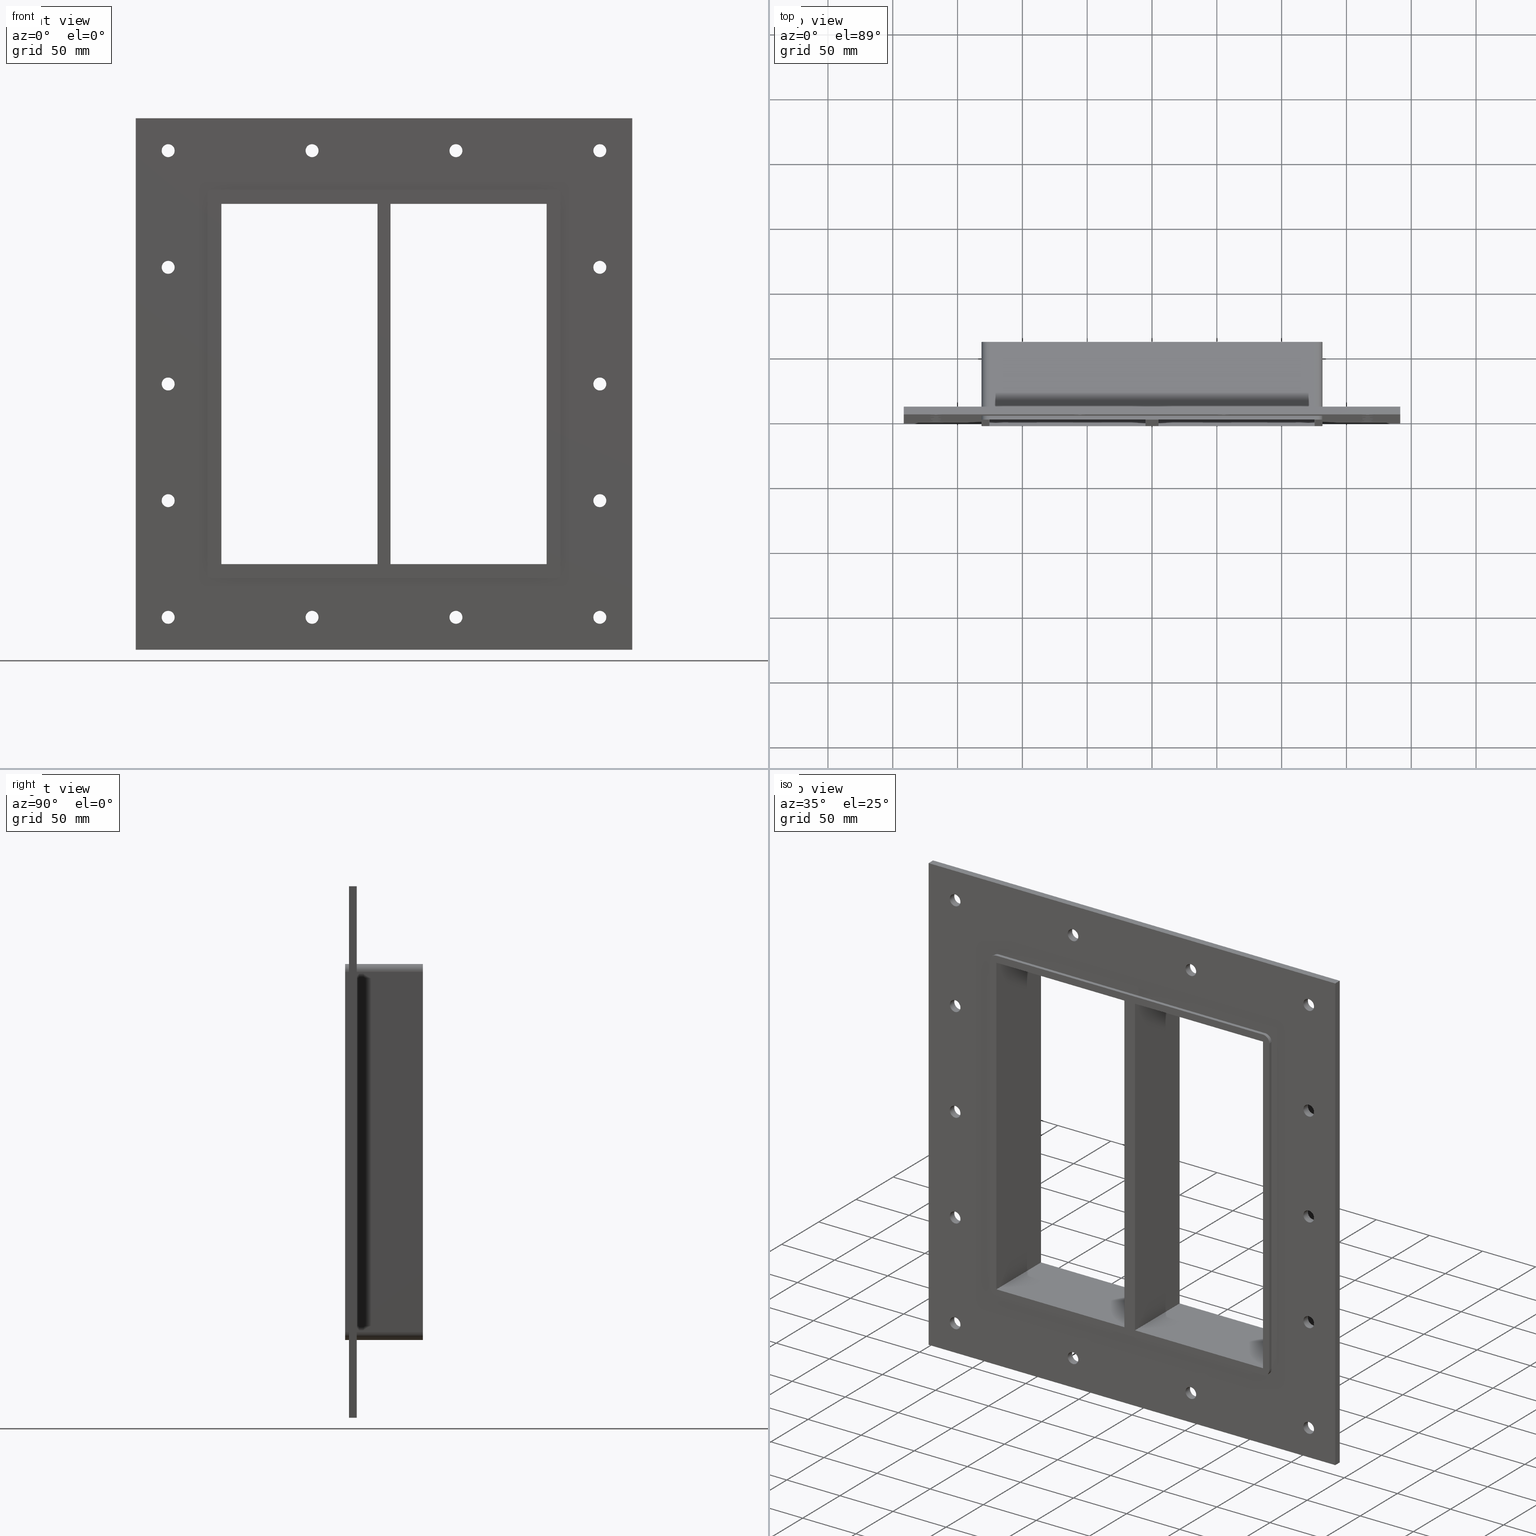
[diagram: canonical four-view strip — front | top / right | iso, engineering-drawing reading convention]
A machine part, canonical four-view strip (front | top / right | iso — engineering-drawing reading convention). The complete STEP part file that produces these views, byte-faithful:
ISO-10303-21;
HEADER;
/****************************************************************
 * Generated by software with PDElib inside                    *
 * PDElib Version v51a, created Wed 11/30/2011                  *
 * ITI Transcendata (http://www.transcendata.com/)              *
 ****************************************************************/
FILE_DESCRIPTION((''),'2;1');
FILE_NAME('N:\\Projects\\Ongoing_Projects\\12403 Transit Designer\\Product-data\\Product Data\\Transit designer Cad Generator\\CreatedFiles\\STEP\\G B EX8X2.stp','2014-12-01T13:17:59',(''),(''),'Autodesk Inventor 2013','Autodesk Inventor 2013','');
FILE_SCHEMA(('AUTOMOTIVE_DESIGN { 1 0 10303 214 1 1 1 1 }'));
ENDSEC;
DATA;
#5=APPLICATION_CONTEXT('automotive design');
#6=APPLICATION_PROTOCOL_DEFINITION('International Standard','automotive_design',2001,#5);
#7=PRODUCT_CONTEXT('',#5,'mechanical');
#8=PRODUCT('G B Ex','G B Ex',$,(#7));
#9=PRODUCT_RELATED_PRODUCT_CATEGORY('part',$,(#8));
#10=PRODUCT_DEFINITION_FORMATION('',$,#8);
#11=PRODUCT_DEFINITION_CONTEXT('part definition',#5,'design');
#12=PRODUCT_DEFINITION('',$,#10,#11);
#18=(NAMED_UNIT(*)PLANE_ANGLE_UNIT()SI_UNIT($,.RADIAN.));
#19=DIMENSIONAL_EXPONENTS(0.0,0.0,0.0,0.0,0.0,0.0,0.0);
#20=PLANE_ANGLE_MEASURE_WITH_UNIT(PLANE_ANGLE_MEASURE(0.0174532925),#18);
#24=(CONVERSION_BASED_UNIT('DEGREE',#20)NAMED_UNIT(#19)PLANE_ANGLE_UNIT());
#28=(NAMED_UNIT(*)SI_UNIT($,.STERADIAN.)SOLID_ANGLE_UNIT());
#32=(LENGTH_UNIT()NAMED_UNIT(*)SI_UNIT(.MILLI.,.METRE.));
#34=UNCERTAINTY_MEASURE_WITH_UNIT(LENGTH_MEASURE(0.01),#32,'DISTANCE_ACCURACY_VALUE','');
#36=(GEOMETRIC_REPRESENTATION_CONTEXT(3)GLOBAL_UNCERTAINTY_ASSIGNED_CONTEXT((#34))GLOBAL_UNIT_ASSIGNED_CONTEXT((#24,#28,#32))REPRESENTATION_CONTEXT('None','None'));
#37=AXIS2_PLACEMENT_3D('',#38,#39,#40);
#38=CARTESIAN_POINT('',(0.0,0.0,0.0));
#39=DIRECTION('',(0.0,0.0,1.0));
#40=DIRECTION('',(1.0,0.0,0.0));
#41=SHAPE_REPRESENTATION('',(#37),#36);
#42=PRODUCT_DEFINITION_SHAPE('','',#12);
#43=SHAPE_DEFINITION_REPRESENTATION(#42,#41);
#49=(NAMED_UNIT(*)PLANE_ANGLE_UNIT()SI_UNIT($,.RADIAN.));
#50=DIMENSIONAL_EXPONENTS(0.0,0.0,0.0,0.0,0.0,0.0,0.0);
#51=PLANE_ANGLE_MEASURE_WITH_UNIT(PLANE_ANGLE_MEASURE(0.0174532925),#49);
#55=(CONVERSION_BASED_UNIT('DEGREE',#51)NAMED_UNIT(#50)PLANE_ANGLE_UNIT());
#59=(NAMED_UNIT(*)SI_UNIT($,.STERADIAN.)SOLID_ANGLE_UNIT());
#63=(LENGTH_UNIT()NAMED_UNIT(*)SI_UNIT(.MILLI.,.METRE.));
#65=UNCERTAINTY_MEASURE_WITH_UNIT(LENGTH_MEASURE(0.000001),#63,'DISTANCE_ACCURACY_VALUE','');
#67=(GEOMETRIC_REPRESENTATION_CONTEXT(3)GLOBAL_UNCERTAINTY_ASSIGNED_CONTEXT((#65))GLOBAL_UNIT_ASSIGNED_CONTEXT((#55,#59,#63))REPRESENTATION_CONTEXT('','3D'));
#68=CARTESIAN_POINT('',(-166.50000000000017,564.25969198587984,-179.99999999999997));
#69=DIRECTION('',(0.0,-1.0,0.0));
#70=DIRECTION('',(1.0,0.0,0.0));
#71=AXIS2_PLACEMENT_3D('',#68,#69,#70);
#72=CYLINDRICAL_SURFACE('',#71,5.0);
#73=CARTESIAN_POINT('',(-171.50000000000017,6.000000000000014,-179.99999999999997));
#74=VERTEX_POINT('',#73);
#75=CARTESIAN_POINT('',(-166.50000000000017,6.000000000000014,-179.99999999999997));
#76=DIRECTION('',(0.0,-1.0,0.0));
#77=DIRECTION('',(1.0,0.0,0.0));
#78=AXIS2_PLACEMENT_3D('',#75,#76,#77);
#79=CIRCLE('',#78,5.0);
#80=EDGE_CURVE('',#74,#74,#79,.T.);
#81=ORIENTED_EDGE('',*,*,#80,.F.);
#82=EDGE_LOOP('',(#81));
#83=FACE_OUTER_BOUND('',#82,.T.);
#84=CARTESIAN_POINT('',(-161.50000000000017,0.0,-179.99999999999997));
#85=VERTEX_POINT('',#84);
#86=CARTESIAN_POINT('',(-166.50000000000017,0.0,-179.99999999999997));
#87=DIRECTION('',(0.0,1.0,0.0));
#88=DIRECTION('',(1.0,0.0,0.0));
#89=AXIS2_PLACEMENT_3D('',#86,#87,#88);
#90=CIRCLE('',#89,5.0);
#91=EDGE_CURVE('',#85,#85,#90,.T.);
#92=ORIENTED_EDGE('',*,*,#91,.F.);
#93=EDGE_LOOP('',(#92));
#94=FACE_BOUND('',#93,.T.);
#95=ADVANCED_FACE('',(#83,#94),#72,.F.);
#96=CARTESIAN_POINT('',(166.49999999999989,564.25969198587984,-89.999999999999972));
#97=DIRECTION('',(0.0,-1.0,0.0));
#98=DIRECTION('',(1.0,0.0,0.0));
#99=AXIS2_PLACEMENT_3D('',#96,#97,#98);
#100=CYLINDRICAL_SURFACE('',#99,5.0);
#101=CARTESIAN_POINT('',(161.49999999999989,6.000000000000014,-89.999999999999972));
#102=VERTEX_POINT('',#101);
#103=CARTESIAN_POINT('',(166.49999999999989,6.000000000000014,-89.999999999999972));
#104=DIRECTION('',(0.0,-1.0,0.0));
#105=DIRECTION('',(1.0,0.0,0.0));
#106=AXIS2_PLACEMENT_3D('',#103,#104,#105);
#107=CIRCLE('',#106,5.0);
#108=EDGE_CURVE('',#102,#102,#107,.T.);
#109=ORIENTED_EDGE('',*,*,#108,.F.);
#110=EDGE_LOOP('',(#109));
#111=FACE_OUTER_BOUND('',#110,.T.);
#112=CARTESIAN_POINT('',(171.49999999999989,0.0,-89.999999999999972));
#113=VERTEX_POINT('',#112);
#114=CARTESIAN_POINT('',(166.49999999999989,0.0,-89.999999999999972));
#115=DIRECTION('',(0.0,1.0,0.0));
#116=DIRECTION('',(1.0,0.0,0.0));
#117=AXIS2_PLACEMENT_3D('',#114,#115,#116);
#118=CIRCLE('',#117,5.0);
#119=EDGE_CURVE('',#113,#113,#118,.T.);
#120=ORIENTED_EDGE('',*,*,#119,.F.);
#121=EDGE_LOOP('',(#120));
#122=FACE_BOUND('',#121,.T.);
#123=ADVANCED_FACE('',(#111,#122),#100,.F.);
#124=CARTESIAN_POINT('',(-166.50000000000017,564.25969198587984,-89.999999999999972));
#125=DIRECTION('',(0.0,-1.0,0.0));
#126=DIRECTION('',(1.0,0.0,0.0));
#127=AXIS2_PLACEMENT_3D('',#124,#125,#126);
#128=CYLINDRICAL_SURFACE('',#127,5.0);
#129=CARTESIAN_POINT('',(-171.50000000000017,6.000000000000014,-89.999999999999972));
#130=VERTEX_POINT('',#129);
#131=CARTESIAN_POINT('',(-166.50000000000017,6.000000000000014,-89.999999999999972));
#132=DIRECTION('',(0.0,-1.0,0.0));
#133=DIRECTION('',(1.0,0.0,0.0));
#134=AXIS2_PLACEMENT_3D('',#131,#132,#133);
#135=CIRCLE('',#134,5.0);
#136=EDGE_CURVE('',#130,#130,#135,.T.);
#137=ORIENTED_EDGE('',*,*,#136,.F.);
#138=EDGE_LOOP('',(#137));
#139=FACE_OUTER_BOUND('',#138,.T.);
#140=CARTESIAN_POINT('',(-161.50000000000017,0.0,-89.999999999999972));
#141=VERTEX_POINT('',#140);
#142=CARTESIAN_POINT('',(-166.50000000000017,0.0,-89.999999999999972));
#143=DIRECTION('',(0.0,1.0,0.0));
#144=DIRECTION('',(1.0,0.0,0.0));
#145=AXIS2_PLACEMENT_3D('',#142,#143,#144);
#146=CIRCLE('',#145,5.0);
#147=EDGE_CURVE('',#141,#141,#146,.T.);
#148=ORIENTED_EDGE('',*,*,#147,.F.);
#149=EDGE_LOOP('',(#148));
#150=FACE_BOUND('',#149,.T.);
#151=ADVANCED_FACE('',(#139,#150),#128,.F.);
#152=CARTESIAN_POINT('',(166.49999999999989,564.25969198587984,3.552714E-014));
#153=DIRECTION('',(0.0,-1.0,0.0));
#154=DIRECTION('',(1.0,0.0,0.0));
#155=AXIS2_PLACEMENT_3D('',#152,#153,#154);
#156=CYLINDRICAL_SURFACE('',#155,5.0);
#157=CARTESIAN_POINT('',(161.49999999999989,6.000000000000014,3.552714E-014));
#158=VERTEX_POINT('',#157);
#159=CARTESIAN_POINT('',(166.49999999999989,6.000000000000014,3.552714E-014));
#160=DIRECTION('',(0.0,-1.0,0.0));
#161=DIRECTION('',(1.0,0.0,0.0));
#162=AXIS2_PLACEMENT_3D('',#159,#160,#161);
#163=CIRCLE('',#162,5.0);
#164=EDGE_CURVE('',#158,#158,#163,.T.);
#165=ORIENTED_EDGE('',*,*,#164,.F.);
#166=EDGE_LOOP('',(#165));
#167=FACE_OUTER_BOUND('',#166,.T.);
#168=CARTESIAN_POINT('',(171.49999999999989,0.0,3.552714E-014));
#169=VERTEX_POINT('',#168);
#170=CARTESIAN_POINT('',(166.49999999999989,0.0,3.552714E-014));
#171=DIRECTION('',(0.0,1.0,0.0));
#172=DIRECTION('',(1.0,0.0,0.0));
#173=AXIS2_PLACEMENT_3D('',#170,#171,#172);
#174=CIRCLE('',#173,5.0);
#175=EDGE_CURVE('',#169,#169,#174,.T.);
#176=ORIENTED_EDGE('',*,*,#175,.F.);
#177=EDGE_LOOP('',(#176));
#178=FACE_BOUND('',#177,.T.);
#179=ADVANCED_FACE('',(#167,#178),#156,.F.);
#180=CARTESIAN_POINT('',(-166.50000000000017,564.25969198587984,3.552714E-014));
#181=DIRECTION('',(0.0,-1.0,0.0));
#182=DIRECTION('',(1.0,0.0,0.0));
#183=AXIS2_PLACEMENT_3D('',#180,#181,#182);
#184=CYLINDRICAL_SURFACE('',#183,5.0);
#185=CARTESIAN_POINT('',(-171.50000000000017,6.000000000000014,3.552714E-014));
#186=VERTEX_POINT('',#185);
#187=CARTESIAN_POINT('',(-166.50000000000017,6.000000000000014,3.552714E-014));
#188=DIRECTION('',(0.0,-1.0,0.0));
#189=DIRECTION('',(1.0,0.0,0.0));
#190=AXIS2_PLACEMENT_3D('',#187,#188,#189);
#191=CIRCLE('',#190,5.0);
#192=EDGE_CURVE('',#186,#186,#191,.T.);
#193=ORIENTED_EDGE('',*,*,#192,.F.);
#194=EDGE_LOOP('',(#193));
#195=FACE_OUTER_BOUND('',#194,.T.);
#196=CARTESIAN_POINT('',(-161.50000000000017,0.0,3.552714E-014));
#197=VERTEX_POINT('',#196);
#198=CARTESIAN_POINT('',(-166.50000000000017,0.0,3.552714E-014));
#199=DIRECTION('',(0.0,1.0,0.0));
#200=DIRECTION('',(1.0,0.0,0.0));
#201=AXIS2_PLACEMENT_3D('',#198,#199,#200);
#202=CIRCLE('',#201,5.0);
#203=EDGE_CURVE('',#197,#197,#202,.T.);
#204=ORIENTED_EDGE('',*,*,#203,.F.);
#205=EDGE_LOOP('',(#204));
#206=FACE_BOUND('',#205,.T.);
#207=ADVANCED_FACE('',(#195,#206),#184,.F.);
#208=CARTESIAN_POINT('',(166.49999999999989,564.25969198587984,90.000000000000028));
#209=DIRECTION('',(0.0,-1.0,0.0));
#210=DIRECTION('',(1.0,0.0,0.0));
#211=AXIS2_PLACEMENT_3D('',#208,#209,#210);
#212=CYLINDRICAL_SURFACE('',#211,5.0);
#213=CARTESIAN_POINT('',(161.49999999999989,6.000000000000014,90.000000000000028));
#214=VERTEX_POINT('',#213);
#215=CARTESIAN_POINT('',(166.49999999999989,6.000000000000014,90.000000000000028));
#216=DIRECTION('',(0.0,-1.0,0.0));
#217=DIRECTION('',(1.0,0.0,0.0));
#218=AXIS2_PLACEMENT_3D('',#215,#216,#217);
#219=CIRCLE('',#218,5.0);
#220=EDGE_CURVE('',#214,#214,#219,.T.);
#221=ORIENTED_EDGE('',*,*,#220,.F.);
#222=EDGE_LOOP('',(#221));
#223=FACE_OUTER_BOUND('',#222,.T.);
#224=CARTESIAN_POINT('',(171.49999999999989,0.0,90.000000000000028));
#225=VERTEX_POINT('',#224);
#226=CARTESIAN_POINT('',(166.49999999999989,0.0,90.000000000000028));
#227=DIRECTION('',(0.0,1.0,0.0));
#228=DIRECTION('',(1.0,0.0,0.0));
#229=AXIS2_PLACEMENT_3D('',#226,#227,#228);
#230=CIRCLE('',#229,5.0);
#231=EDGE_CURVE('',#225,#225,#230,.T.);
#232=ORIENTED_EDGE('',*,*,#231,.F.);
#233=EDGE_LOOP('',(#232));
#234=FACE_BOUND('',#233,.T.);
#235=ADVANCED_FACE('',(#223,#234),#212,.F.);
#236=CARTESIAN_POINT('',(-166.50000000000017,564.25969198587984,90.000000000000028));
#237=DIRECTION('',(0.0,-1.0,0.0));
#238=DIRECTION('',(1.0,0.0,0.0));
#239=AXIS2_PLACEMENT_3D('',#236,#237,#238);
#240=CYLINDRICAL_SURFACE('',#239,5.0);
#241=CARTESIAN_POINT('',(-171.50000000000017,6.000000000000014,90.000000000000028));
#242=VERTEX_POINT('',#241);
#243=CARTESIAN_POINT('',(-166.50000000000017,6.000000000000014,90.000000000000028));
#244=DIRECTION('',(0.0,-1.0,0.0));
#245=DIRECTION('',(1.0,0.0,0.0));
#246=AXIS2_PLACEMENT_3D('',#243,#244,#245);
#247=CIRCLE('',#246,5.0);
#248=EDGE_CURVE('',#242,#242,#247,.T.);
#249=ORIENTED_EDGE('',*,*,#248,.F.);
#250=EDGE_LOOP('',(#249));
#251=FACE_OUTER_BOUND('',#250,.T.);
#252=CARTESIAN_POINT('',(-161.50000000000017,0.0,90.000000000000028));
#253=VERTEX_POINT('',#252);
#254=CARTESIAN_POINT('',(-166.50000000000017,0.0,90.000000000000028));
#255=DIRECTION('',(0.0,1.0,0.0));
#256=DIRECTION('',(1.0,0.0,0.0));
#257=AXIS2_PLACEMENT_3D('',#254,#255,#256);
#258=CIRCLE('',#257,5.0);
#259=EDGE_CURVE('',#253,#253,#258,.T.);
#260=ORIENTED_EDGE('',*,*,#259,.F.);
#261=EDGE_LOOP('',(#260));
#262=FACE_BOUND('',#261,.T.);
#263=ADVANCED_FACE('',(#251,#262),#240,.F.);
#264=CARTESIAN_POINT('',(-55.500000000000149,564.25969198587984,180.00000000000003));
#265=DIRECTION('',(0.0,-1.0,0.0));
#266=DIRECTION('',(1.0,0.0,0.0));
#267=AXIS2_PLACEMENT_3D('',#264,#265,#266);
#268=CYLINDRICAL_SURFACE('',#267,5.0);
#269=CARTESIAN_POINT('',(-60.500000000000149,6.000000000000014,180.00000000000003));
#270=VERTEX_POINT('',#269);
#271=CARTESIAN_POINT('',(-55.500000000000149,6.000000000000014,180.00000000000003));
#272=DIRECTION('',(0.0,-1.0,0.0));
#273=DIRECTION('',(1.0,0.0,0.0));
#274=AXIS2_PLACEMENT_3D('',#271,#272,#273);
#275=CIRCLE('',#274,5.0);
#276=EDGE_CURVE('',#270,#270,#275,.T.);
#277=ORIENTED_EDGE('',*,*,#276,.F.);
#278=EDGE_LOOP('',(#277));
#279=FACE_OUTER_BOUND('',#278,.T.);
#280=CARTESIAN_POINT('',(-50.500000000000149,0.0,180.00000000000003));
#281=VERTEX_POINT('',#280);
#282=CARTESIAN_POINT('',(-55.500000000000149,0.0,180.00000000000003));
#283=DIRECTION('',(0.0,1.0,0.0));
#284=DIRECTION('',(1.0,0.0,0.0));
#285=AXIS2_PLACEMENT_3D('',#282,#283,#284);
#286=CIRCLE('',#285,5.0);
#287=EDGE_CURVE('',#281,#281,#286,.T.);
#288=ORIENTED_EDGE('',*,*,#287,.F.);
#289=EDGE_LOOP('',(#288));
#290=FACE_BOUND('',#289,.T.);
#291=ADVANCED_FACE('',(#279,#290),#268,.F.);
#292=CARTESIAN_POINT('',(-55.500000000000149,564.25969198587984,-179.99999999999997));
#293=DIRECTION('',(0.0,-1.0,0.0));
#294=DIRECTION('',(1.0,0.0,0.0));
#295=AXIS2_PLACEMENT_3D('',#292,#293,#294);
#296=CYLINDRICAL_SURFACE('',#295,5.0);
#297=CARTESIAN_POINT('',(-60.500000000000149,6.000000000000014,-179.99999999999997));
#298=VERTEX_POINT('',#297);
#299=CARTESIAN_POINT('',(-55.500000000000149,6.000000000000014,-179.99999999999997));
#300=DIRECTION('',(0.0,-1.0,0.0));
#301=DIRECTION('',(1.0,0.0,0.0));
#302=AXIS2_PLACEMENT_3D('',#299,#300,#301);
#303=CIRCLE('',#302,5.0);
#304=EDGE_CURVE('',#298,#298,#303,.T.);
#305=ORIENTED_EDGE('',*,*,#304,.F.);
#306=EDGE_LOOP('',(#305));
#307=FACE_OUTER_BOUND('',#306,.T.);
#308=CARTESIAN_POINT('',(-50.500000000000149,0.0,-179.99999999999997));
#309=VERTEX_POINT('',#308);
#310=CARTESIAN_POINT('',(-55.500000000000149,0.0,-179.99999999999997));
#311=DIRECTION('',(0.0,1.0,0.0));
#312=DIRECTION('',(1.0,0.0,0.0));
#313=AXIS2_PLACEMENT_3D('',#310,#311,#312);
#314=CIRCLE('',#313,5.0);
#315=EDGE_CURVE('',#309,#309,#314,.T.);
#316=ORIENTED_EDGE('',*,*,#315,.F.);
#317=EDGE_LOOP('',(#316));
#318=FACE_BOUND('',#317,.T.);
#319=ADVANCED_FACE('',(#307,#318),#296,.F.);
#320=CARTESIAN_POINT('',(55.499999999999865,564.25969198587984,180.00000000000003));
#321=DIRECTION('',(0.0,-1.0,0.0));
#322=DIRECTION('',(1.0,0.0,0.0));
#323=AXIS2_PLACEMENT_3D('',#320,#321,#322);
#324=CYLINDRICAL_SURFACE('',#323,5.0);
#325=CARTESIAN_POINT('',(50.499999999999865,6.000000000000014,180.00000000000003));
#326=VERTEX_POINT('',#325);
#327=CARTESIAN_POINT('',(55.499999999999865,6.000000000000014,180.00000000000003));
#328=DIRECTION('',(0.0,-1.0,0.0));
#329=DIRECTION('',(1.0,0.0,0.0));
#330=AXIS2_PLACEMENT_3D('',#327,#328,#329);
#331=CIRCLE('',#330,5.0);
#332=EDGE_CURVE('',#326,#326,#331,.T.);
#333=ORIENTED_EDGE('',*,*,#332,.F.);
#334=EDGE_LOOP('',(#333));
#335=FACE_OUTER_BOUND('',#334,.T.);
#336=CARTESIAN_POINT('',(60.499999999999865,0.0,180.00000000000003));
#337=VERTEX_POINT('',#336);
#338=CARTESIAN_POINT('',(55.499999999999865,0.0,180.00000000000003));
#339=DIRECTION('',(0.0,1.0,0.0));
#340=DIRECTION('',(1.0,0.0,0.0));
#341=AXIS2_PLACEMENT_3D('',#338,#339,#340);
#342=CIRCLE('',#341,5.0);
#343=EDGE_CURVE('',#337,#337,#342,.T.);
#344=ORIENTED_EDGE('',*,*,#343,.F.);
#345=EDGE_LOOP('',(#344));
#346=FACE_BOUND('',#345,.T.);
#347=ADVANCED_FACE('',(#335,#346),#324,.F.);
#348=CARTESIAN_POINT('',(55.499999999999865,564.25969198587984,-179.99999999999997));
#349=DIRECTION('',(0.0,-1.0,0.0));
#350=DIRECTION('',(1.0,0.0,0.0));
#351=AXIS2_PLACEMENT_3D('',#348,#349,#350);
#352=CYLINDRICAL_SURFACE('',#351,5.0);
#353=CARTESIAN_POINT('',(50.499999999999865,6.000000000000014,-179.99999999999997));
#354=VERTEX_POINT('',#353);
#355=CARTESIAN_POINT('',(55.499999999999865,6.000000000000014,-179.99999999999997));
#356=DIRECTION('',(0.0,-1.0,0.0));
#357=DIRECTION('',(1.0,0.0,0.0));
#358=AXIS2_PLACEMENT_3D('',#355,#356,#357);
#359=CIRCLE('',#358,5.0);
#360=EDGE_CURVE('',#354,#354,#359,.T.);
#361=ORIENTED_EDGE('',*,*,#360,.F.);
#362=EDGE_LOOP('',(#361));
#363=FACE_OUTER_BOUND('',#362,.T.);
#364=CARTESIAN_POINT('',(60.499999999999865,0.0,-179.99999999999997));
#365=VERTEX_POINT('',#364);
#366=CARTESIAN_POINT('',(55.499999999999865,0.0,-179.99999999999997));
#367=DIRECTION('',(0.0,1.0,0.0));
#368=DIRECTION('',(1.0,0.0,0.0));
#369=AXIS2_PLACEMENT_3D('',#366,#367,#368);
#370=CIRCLE('',#369,5.0);
#371=EDGE_CURVE('',#365,#365,#370,.T.);
#372=ORIENTED_EDGE('',*,*,#371,.F.);
#373=EDGE_LOOP('',(#372));
#374=FACE_BOUND('',#373,.T.);
#375=ADVANCED_FACE('',(#363,#374),#352,.F.);
#376=CARTESIAN_POINT('',(166.49999999999989,564.25969198587984,-179.99999999999997));
#377=DIRECTION('',(0.0,-1.0,0.0));
#378=DIRECTION('',(1.0,0.0,0.0));
#379=AXIS2_PLACEMENT_3D('',#376,#377,#378);
#380=CYLINDRICAL_SURFACE('',#379,5.0);
#381=CARTESIAN_POINT('',(161.49999999999989,6.000000000000014,-179.99999999999997));
#382=VERTEX_POINT('',#381);
#383=CARTESIAN_POINT('',(166.49999999999989,6.000000000000014,-179.99999999999997));
#384=DIRECTION('',(0.0,-1.0,0.0));
#385=DIRECTION('',(1.0,0.0,0.0));
#386=AXIS2_PLACEMENT_3D('',#383,#384,#385);
#387=CIRCLE('',#386,5.0);
#388=EDGE_CURVE('',#382,#382,#387,.T.);
#389=ORIENTED_EDGE('',*,*,#388,.F.);
#390=EDGE_LOOP('',(#389));
#391=FACE_OUTER_BOUND('',#390,.T.);
#392=CARTESIAN_POINT('',(171.49999999999989,0.0,-179.99999999999997));
#393=VERTEX_POINT('',#392);
#394=CARTESIAN_POINT('',(166.49999999999989,0.0,-179.99999999999997));
#395=DIRECTION('',(0.0,1.0,0.0));
#396=DIRECTION('',(1.0,0.0,0.0));
#397=AXIS2_PLACEMENT_3D('',#394,#395,#396);
#398=CIRCLE('',#397,5.0);
#399=EDGE_CURVE('',#393,#393,#398,.T.);
#400=ORIENTED_EDGE('',*,*,#399,.F.);
#401=EDGE_LOOP('',(#400));
#402=FACE_BOUND('',#401,.T.);
#403=ADVANCED_FACE('',(#391,#402),#380,.F.);
#404=CARTESIAN_POINT('',(-166.50000000000017,564.25969198587984,180.00000000000003));
#405=DIRECTION('',(0.0,-1.0,0.0));
#406=DIRECTION('',(1.0,0.0,0.0));
#407=AXIS2_PLACEMENT_3D('',#404,#405,#406);
#408=CYLINDRICAL_SURFACE('',#407,5.0);
#409=CARTESIAN_POINT('',(-171.50000000000017,6.000000000000014,180.00000000000003));
#410=VERTEX_POINT('',#409);
#411=CARTESIAN_POINT('',(-166.50000000000017,6.000000000000014,180.00000000000003));
#412=DIRECTION('',(0.0,-1.0,0.0));
#413=DIRECTION('',(1.0,0.0,0.0));
#414=AXIS2_PLACEMENT_3D('',#411,#412,#413);
#415=CIRCLE('',#414,5.0);
#416=EDGE_CURVE('',#410,#410,#415,.T.);
#417=ORIENTED_EDGE('',*,*,#416,.F.);
#418=EDGE_LOOP('',(#417));
#419=FACE_OUTER_BOUND('',#418,.T.);
#420=CARTESIAN_POINT('',(-161.50000000000017,0.0,180.00000000000003));
#421=VERTEX_POINT('',#420);
#422=CARTESIAN_POINT('',(-166.50000000000017,0.0,180.00000000000003));
#423=DIRECTION('',(0.0,1.0,0.0));
#424=DIRECTION('',(1.0,0.0,0.0));
#425=AXIS2_PLACEMENT_3D('',#422,#423,#424);
#426=CIRCLE('',#425,5.0);
#427=EDGE_CURVE('',#421,#421,#426,.T.);
#428=ORIENTED_EDGE('',*,*,#427,.F.);
#429=EDGE_LOOP('',(#428));
#430=FACE_BOUND('',#429,.T.);
#431=ADVANCED_FACE('',(#419,#430),#408,.F.);
#432=CARTESIAN_POINT('',(166.49999999999989,564.25969198587984,180.00000000000003));
#433=DIRECTION('',(0.0,-1.0,0.0));
#434=DIRECTION('',(1.0,0.0,0.0));
#435=AXIS2_PLACEMENT_3D('',#432,#433,#434);
#436=CYLINDRICAL_SURFACE('',#435,5.0);
#437=CARTESIAN_POINT('',(161.49999999999989,6.000000000000014,180.00000000000003));
#438=VERTEX_POINT('',#437);
#439=CARTESIAN_POINT('',(166.49999999999989,6.000000000000014,180.00000000000003));
#440=DIRECTION('',(0.0,-1.0,0.0));
#441=DIRECTION('',(1.0,0.0,0.0));
#442=AXIS2_PLACEMENT_3D('',#439,#440,#441);
#443=CIRCLE('',#442,5.0);
#444=EDGE_CURVE('',#438,#438,#443,.T.);
#445=ORIENTED_EDGE('',*,*,#444,.F.);
#446=EDGE_LOOP('',(#445));
#447=FACE_OUTER_BOUND('',#446,.T.);
#448=CARTESIAN_POINT('',(171.49999999999989,0.0,180.00000000000003));
#449=VERTEX_POINT('',#448);
#450=CARTESIAN_POINT('',(166.49999999999989,0.0,180.00000000000003));
#451=DIRECTION('',(0.0,1.0,0.0));
#452=DIRECTION('',(1.0,0.0,0.0));
#453=AXIS2_PLACEMENT_3D('',#450,#451,#452);
#454=CIRCLE('',#453,5.0);
#455=EDGE_CURVE('',#449,#449,#454,.T.);
#456=ORIENTED_EDGE('',*,*,#455,.F.);
#457=EDGE_LOOP('',(#456));
#458=FACE_BOUND('',#457,.T.);
#459=ADVANCED_FACE('',(#447,#458),#436,.F.);
#460=CARTESIAN_POINT('',(-5.000000000001315,-3.0,-139.0));
#461=DIRECTION('',(-1.0,0.0,0.0));
#462=DIRECTION('',(0.0,0.0,1.0));
#463=AXIS2_PLACEMENT_3D('',#460,#461,#462);
#464=PLANE('',#463);
#465=CARTESIAN_POINT('',(-5.000000000001315,-3.0,-139.0));
#466=VERTEX_POINT('',#465);
#467=CARTESIAN_POINT('',(-5.000000000001368,-3.0,139.0));
#468=VERTEX_POINT('',#467);
#469=CARTESIAN_POINT('',(-5.000000000001315,-3.0,-139.0));
#470=DIRECTION('',(0.0,0.0,1.0));
#471=VECTOR('',#470,278.0);
#472=LINE('',#469,#471);
#473=EDGE_CURVE('',#466,#468,#472,.T.);
#474=ORIENTED_EDGE('',*,*,#473,.T.);
#475=CARTESIAN_POINT('',(-5.000000000001368,57.0,139.0));
#476=VERTEX_POINT('',#475);
#477=CARTESIAN_POINT('',(-5.000000000001368,57.000000000000007,139.0));
#478=DIRECTION('',(0.0,-1.0,0.0));
#479=VECTOR('',#478,60.000000000000007);
#480=LINE('',#477,#479);
#481=EDGE_CURVE('',#476,#468,#480,.T.);
#482=ORIENTED_EDGE('',*,*,#481,.F.);
#483=CARTESIAN_POINT('',(-5.000000000001315,57.0,-139.0));
#484=VERTEX_POINT('',#483);
#485=CARTESIAN_POINT('',(-5.000000000001315,57.0,-139.0));
#486=DIRECTION('',(0.0,0.0,1.0));
#487=VECTOR('',#486,278.0);
#488=LINE('',#485,#487);
#489=EDGE_CURVE('',#484,#476,#488,.T.);
#490=ORIENTED_EDGE('',*,*,#489,.F.);
#491=CARTESIAN_POINT('',(-5.000000000001315,-3.0,-139.0));
#492=DIRECTION('',(0.0,1.0,0.0));
#493=VECTOR('',#492,60.000000000000007);
#494=LINE('',#491,#493);
#495=EDGE_CURVE('',#466,#484,#494,.T.);
#496=ORIENTED_EDGE('',*,*,#495,.F.);
#497=EDGE_LOOP('',(#474,#482,#490,#496));
#498=FACE_OUTER_BOUND('',#497,.T.);
#499=ADVANCED_FACE('',(#498),#464,.T.);
#500=CARTESIAN_POINT('',(5.0,-3.0,139.0));
#501=DIRECTION('',(1.0,0.0,0.0));
#502=DIRECTION('',(0.0,0.0,-1.0));
#503=AXIS2_PLACEMENT_3D('',#500,#501,#502);
#504=PLANE('',#503);
#505=CARTESIAN_POINT('',(5.0,-3.0,139.0));
#506=VERTEX_POINT('',#505);
#507=CARTESIAN_POINT('',(5.0,-3.0,-138.99999999998175));
#508=VERTEX_POINT('',#507);
#509=CARTESIAN_POINT('',(5.0,-3.0,139.0));
#510=DIRECTION('',(0.0,0.0,-1.0));
#511=VECTOR('',#510,277.99999999998175);
#512=LINE('',#509,#511);
#513=EDGE_CURVE('',#506,#508,#512,.T.);
#514=ORIENTED_EDGE('',*,*,#513,.T.);
#515=CARTESIAN_POINT('',(5.0,57.0,-138.99999999998175));
#516=VERTEX_POINT('',#515);
#517=CARTESIAN_POINT('',(5.0,57.000000000000007,-139.0));
#518=DIRECTION('',(0.0,-1.0,0.0));
#519=VECTOR('',#518,60.000000000000007);
#520=LINE('',#517,#519);
#521=EDGE_CURVE('',#516,#508,#520,.T.);
#522=ORIENTED_EDGE('',*,*,#521,.F.);
#523=CARTESIAN_POINT('',(5.0,57.0,139.0));
#524=VERTEX_POINT('',#523);
#525=CARTESIAN_POINT('',(5.0,57.0,139.0));
#526=DIRECTION('',(0.0,0.0,-1.0));
#527=VECTOR('',#526,277.99999999998175);
#528=LINE('',#525,#527);
#529=EDGE_CURVE('',#524,#516,#528,.T.);
#530=ORIENTED_EDGE('',*,*,#529,.F.);
#531=CARTESIAN_POINT('',(5.0,-3.0,139.0));
#532=DIRECTION('',(0.0,1.0,0.0));
#533=VECTOR('',#532,60.000000000000007);
#534=LINE('',#531,#533);
#535=EDGE_CURVE('',#506,#524,#534,.T.);
#536=ORIENTED_EDGE('',*,*,#535,.F.);
#537=EDGE_LOOP('',(#514,#522,#530,#536));
#538=FACE_OUTER_BOUND('',#537,.T.);
#539=ADVANCED_FACE('',(#538),#504,.T.);
#540=CARTESIAN_POINT('',(125.49999999999999,0.0,-139.0));
#541=DIRECTION('',(0.0,0.0,-1.0));
#542=DIRECTION('',(-1.0,0.0,0.0));
#543=AXIS2_PLACEMENT_3D('',#540,#541,#542);
#544=PLANE('',#543);
#545=ORIENTED_EDGE('',*,*,#495,.T.);
#546=CARTESIAN_POINT('',(-125.50000000000003,57.0,-139.0));
#547=VERTEX_POINT('',#546);
#548=CARTESIAN_POINT('',(-125.50000000000004,57.0,-139.0));
#549=DIRECTION('',(1.0,0.0,0.0));
#550=VECTOR('',#549,120.49999999999872);
#551=LINE('',#548,#550);
#552=EDGE_CURVE('',#547,#484,#551,.T.);
#553=ORIENTED_EDGE('',*,*,#552,.F.);
#554=CARTESIAN_POINT('',(-125.50000000000003,-3.0,-139.0));
#555=VERTEX_POINT('',#554);
#556=CARTESIAN_POINT('',(-125.5,-3.0,-139.0));
#557=DIRECTION('',(0.0,1.0,0.0));
#558=VECTOR('',#557,60.0);
#559=LINE('',#556,#558);
#560=EDGE_CURVE('',#555,#547,#559,.T.);
#561=ORIENTED_EDGE('',*,*,#560,.F.);
#562=CARTESIAN_POINT('',(-5.000000000001322,-3.0,-139.0));
#563=DIRECTION('',(-1.0,0.0,0.0));
#564=VECTOR('',#563,120.49999999999872);
#565=LINE('',#562,#564);
#566=EDGE_CURVE('',#466,#555,#565,.T.);
#567=ORIENTED_EDGE('',*,*,#566,.F.);
#568=EDGE_LOOP('',(#545,#553,#561,#567));
#569=FACE_OUTER_BOUND('',#568,.T.);
#570=ADVANCED_FACE('',(#569),#544,.F.);
#571=CARTESIAN_POINT('',(125.49999999999999,0.0,-139.0));
#572=DIRECTION('',(0.0,0.0,-1.0));
#573=DIRECTION('',(-1.0,0.0,0.0));
#574=AXIS2_PLACEMENT_3D('',#571,#572,#573);
#575=PLANE('',#574);
#576=ORIENTED_EDGE('',*,*,#521,.T.);
#577=CARTESIAN_POINT('',(125.49999999999999,-3.0,-139.0));
#578=VERTEX_POINT('',#577);
#579=CARTESIAN_POINT('',(125.49999999999999,-3.0,-139.0));
#580=DIRECTION('',(-1.0,0.0,0.0));
#581=VECTOR('',#580,120.49999999999999);
#582=LINE('',#579,#581);
#583=EDGE_CURVE('',#578,#508,#582,.T.);
#584=ORIENTED_EDGE('',*,*,#583,.F.);
#585=CARTESIAN_POINT('',(125.49999999999999,57.0,-139.0));
#586=VERTEX_POINT('',#585);
#587=CARTESIAN_POINT('',(125.49999999999999,56.999999999999993,-139.0));
#588=DIRECTION('',(0.0,-1.0,0.0));
#589=VECTOR('',#588,59.999999999999993);
#590=LINE('',#587,#589);
#591=EDGE_CURVE('',#586,#578,#590,.T.);
#592=ORIENTED_EDGE('',*,*,#591,.F.);
#593=CARTESIAN_POINT('',(5.0,57.0,-139.0));
#594=DIRECTION('',(1.0,0.0,0.0));
#595=VECTOR('',#594,120.49999999999999);
#596=LINE('',#593,#595);
#597=EDGE_CURVE('',#516,#586,#596,.T.);
#598=ORIENTED_EDGE('',*,*,#597,.F.);
#599=EDGE_LOOP('',(#576,#584,#592,#598));
#600=FACE_OUTER_BOUND('',#599,.T.);
#601=ADVANCED_FACE('',(#600),#575,.F.);
#602=CARTESIAN_POINT('',(-125.5,0.0,139.0));
#603=DIRECTION('',(0.0,0.0,1.0));
#604=DIRECTION('',(1.0,0.0,0.0));
#605=AXIS2_PLACEMENT_3D('',#602,#603,#604);
#606=PLANE('',#605);
#607=ORIENTED_EDGE('',*,*,#535,.T.);
#608=CARTESIAN_POINT('',(125.49999999999999,57.0,139.0));
#609=VERTEX_POINT('',#608);
#610=CARTESIAN_POINT('',(125.49999999999999,57.0,139.0));
#611=DIRECTION('',(-1.0,0.0,0.0));
#612=VECTOR('',#611,120.49999999999999);
#613=LINE('',#610,#612);
#614=EDGE_CURVE('',#609,#524,#613,.T.);
#615=ORIENTED_EDGE('',*,*,#614,.F.);
#616=CARTESIAN_POINT('',(125.49999999999999,-3.0,139.0));
#617=VERTEX_POINT('',#616);
#618=CARTESIAN_POINT('',(125.49999999999999,-3.0,139.0));
#619=DIRECTION('',(0.0,1.0,0.0));
#620=VECTOR('',#619,60.0);
#621=LINE('',#618,#620);
#622=EDGE_CURVE('',#617,#609,#621,.T.);
#623=ORIENTED_EDGE('',*,*,#622,.F.);
#624=CARTESIAN_POINT('',(5.0,-3.0,139.0));
#625=DIRECTION('',(1.0,0.0,0.0));
#626=VECTOR('',#625,120.49999999999999);
#627=LINE('',#624,#626);
#628=EDGE_CURVE('',#506,#617,#627,.T.);
#629=ORIENTED_EDGE('',*,*,#628,.F.);
#630=EDGE_LOOP('',(#607,#615,#623,#629));
#631=FACE_OUTER_BOUND('',#630,.T.);
#632=ADVANCED_FACE('',(#631),#606,.F.);
#633=CARTESIAN_POINT('',(-125.5,0.0,139.0));
#634=DIRECTION('',(0.0,0.0,1.0));
#635=DIRECTION('',(1.0,0.0,0.0));
#636=AXIS2_PLACEMENT_3D('',#633,#634,#635);
#637=PLANE('',#636);
#638=ORIENTED_EDGE('',*,*,#481,.T.);
#639=CARTESIAN_POINT('',(-125.50000000000003,-3.0,139.0));
#640=VERTEX_POINT('',#639);
#641=CARTESIAN_POINT('',(-125.50000000000003,-3.0,139.0));
#642=DIRECTION('',(1.0,0.0,0.0));
#643=VECTOR('',#642,120.49999999999866);
#644=LINE('',#641,#643);
#645=EDGE_CURVE('',#640,#468,#644,.T.);
#646=ORIENTED_EDGE('',*,*,#645,.F.);
#647=CARTESIAN_POINT('',(-125.50000000000003,57.0,139.0));
#648=VERTEX_POINT('',#647);
#649=CARTESIAN_POINT('',(-125.5,-3.0,139.0));
#650=DIRECTION('',(0.0,1.0,0.0));
#651=VECTOR('',#650,60.0);
#652=LINE('',#649,#651);
#653=EDGE_CURVE('',#640,#648,#652,.T.);
#654=ORIENTED_EDGE('',*,*,#653,.T.);
#655=CARTESIAN_POINT('',(-5.000000000001371,57.0,139.0));
#656=DIRECTION('',(-1.0,0.0,0.0));
#657=VECTOR('',#656,120.49999999999866);
#658=LINE('',#655,#657);
#659=EDGE_CURVE('',#476,#648,#658,.T.);
#660=ORIENTED_EDGE('',*,*,#659,.F.);
#661=EDGE_LOOP('',(#638,#646,#654,#660));
#662=FACE_OUTER_BOUND('',#661,.T.);
#663=ADVANCED_FACE('',(#662),#637,.F.);
#664=CARTESIAN_POINT('',(-2.150445E-014,6.000000000000001,1.993641E-014));
#665=DIRECTION('',(0.0,1.0,0.0));
#666=DIRECTION('',(0.0,0.0,1.0));
#667=AXIS2_PLACEMENT_3D('',#664,#665,#666);
#668=PLANE('',#667);
#669=CARTESIAN_POINT('',(-191.50000000000003,6.000000000000001,205.0));
#670=VERTEX_POINT('',#669);
#671=CARTESIAN_POINT('',(191.49999999999994,6.000000000000001,205.0));
#672=VERTEX_POINT('',#671);
#673=CARTESIAN_POINT('',(-191.50000000000003,6.000000000000001,205.0));
#674=DIRECTION('',(1.0,0.0,0.0));
#675=VECTOR('',#674,383.0);
#676=LINE('',#673,#675);
#677=EDGE_CURVE('',#670,#672,#676,.T.);
#678=ORIENTED_EDGE('',*,*,#677,.T.);
#679=CARTESIAN_POINT('',(191.49999999999994,6.000000000000001,-205.0));
#680=VERTEX_POINT('',#679);
#681=CARTESIAN_POINT('',(191.5,6.000000000000001,205.0));
#682=DIRECTION('',(0.0,0.0,-1.0));
#683=VECTOR('',#682,410.0);
#684=LINE('',#681,#683);
#685=EDGE_CURVE('',#672,#680,#684,.T.);
#686=ORIENTED_EDGE('',*,*,#685,.T.);
#687=CARTESIAN_POINT('',(-191.50000000000003,6.000000000000001,-205.0));
#688=VERTEX_POINT('',#687);
#689=CARTESIAN_POINT('',(191.5,6.000000000000001,-204.99999999999997));
#690=DIRECTION('',(-1.0,0.0,0.0));
#691=VECTOR('',#690,383.0);
#692=LINE('',#689,#691);
#693=EDGE_CURVE('',#680,#688,#692,.T.);
#694=ORIENTED_EDGE('',*,*,#693,.T.);
#695=CARTESIAN_POINT('',(-191.50000000000003,6.000000000000001,-204.99999999999997));
#696=DIRECTION('',(0.0,0.0,1.0));
#697=VECTOR('',#696,410.0);
#698=LINE('',#695,#697);
#699=EDGE_CURVE('',#688,#670,#698,.T.);
#700=ORIENTED_EDGE('',*,*,#699,.T.);
#701=EDGE_LOOP('',(#678,#686,#694,#700));
#702=FACE_OUTER_BOUND('',#701,.T.);
#703=ORIENTED_EDGE('',*,*,#80,.T.);
#704=EDGE_LOOP('',(#703));
#705=FACE_BOUND('',#704,.T.);
#706=ORIENTED_EDGE('',*,*,#108,.T.);
#707=EDGE_LOOP('',(#706));
#708=FACE_BOUND('',#707,.T.);
#709=ORIENTED_EDGE('',*,*,#136,.T.);
#710=EDGE_LOOP('',(#709));
#711=FACE_BOUND('',#710,.T.);
#712=ORIENTED_EDGE('',*,*,#164,.T.);
#713=EDGE_LOOP('',(#712));
#714=FACE_BOUND('',#713,.T.);
#715=ORIENTED_EDGE('',*,*,#192,.T.);
#716=EDGE_LOOP('',(#715));
#717=FACE_BOUND('',#716,.T.);
#718=ORIENTED_EDGE('',*,*,#220,.T.);
#719=EDGE_LOOP('',(#718));
#720=FACE_BOUND('',#719,.T.);
#721=ORIENTED_EDGE('',*,*,#248,.T.);
#722=EDGE_LOOP('',(#721));
#723=FACE_BOUND('',#722,.T.);
#724=ORIENTED_EDGE('',*,*,#276,.T.);
#725=EDGE_LOOP('',(#724));
#726=FACE_BOUND('',#725,.T.);
#727=ORIENTED_EDGE('',*,*,#304,.T.);
#728=EDGE_LOOP('',(#727));
#729=FACE_BOUND('',#728,.T.);
#730=ORIENTED_EDGE('',*,*,#332,.T.);
#731=EDGE_LOOP('',(#730));
#732=FACE_BOUND('',#731,.T.);
#733=ORIENTED_EDGE('',*,*,#360,.T.);
#734=EDGE_LOOP('',(#733));
#735=FACE_BOUND('',#734,.T.);
#736=ORIENTED_EDGE('',*,*,#388,.T.);
#737=EDGE_LOOP('',(#736));
#738=FACE_BOUND('',#737,.T.);
#739=ORIENTED_EDGE('',*,*,#416,.T.);
#740=EDGE_LOOP('',(#739));
#741=FACE_BOUND('',#740,.T.);
#742=ORIENTED_EDGE('',*,*,#444,.T.);
#743=EDGE_LOOP('',(#742));
#744=FACE_BOUND('',#743,.T.);
#745=CARTESIAN_POINT('',(-125.50000000000004,6.000000000000001,-145.0));
#746=VERTEX_POINT('',#745);
#747=CARTESIAN_POINT('',(-131.50000000000003,6.000000000000001,-139.0));
#748=VERTEX_POINT('',#747);
#749=CARTESIAN_POINT('',(-125.50000000000004,6.000000000000001,-139.0));
#750=DIRECTION('',(0.0,1.0,0.0));
#751=DIRECTION('',(-0.707106781186545,0.0,-0.70710678118655));
#752=AXIS2_PLACEMENT_3D('',#749,#750,#751);
#753=CIRCLE('',#752,6.000000000000001);
#754=EDGE_CURVE('',#746,#748,#753,.T.);
#755=ORIENTED_EDGE('',*,*,#754,.F.);
#756=CARTESIAN_POINT('',(125.49999999999997,6.000000000000001,-145.0));
#757=VERTEX_POINT('',#756);
#758=CARTESIAN_POINT('',(125.49999999999997,6.000000000000001,-145.0));
#759=DIRECTION('',(-1.0,0.0,0.0));
#760=VECTOR('',#759,251.0);
#761=LINE('',#758,#760);
#762=EDGE_CURVE('',#757,#746,#761,.T.);
#763=ORIENTED_EDGE('',*,*,#762,.F.);
#764=CARTESIAN_POINT('',(131.5,6.000000000000001,-139.0));
#765=VERTEX_POINT('',#764);
#766=CARTESIAN_POINT('',(125.49999999999997,6.000000000000001,-139.0));
#767=DIRECTION('',(0.0,1.0,0.0));
#768=DIRECTION('',(0.707106781186548,0.0,-0.707106781186548));
#769=AXIS2_PLACEMENT_3D('',#766,#767,#768);
#770=CIRCLE('',#769,6.000000000000002);
#771=EDGE_CURVE('',#765,#757,#770,.T.);
#772=ORIENTED_EDGE('',*,*,#771,.F.);
#773=CARTESIAN_POINT('',(131.5,6.000000000000001,139.0));
#774=VERTEX_POINT('',#773);
#775=CARTESIAN_POINT('',(131.5,6.000000000000001,139.0));
#776=DIRECTION('',(0.0,0.0,-1.0));
#777=VECTOR('',#776,278.0);
#778=LINE('',#775,#777);
#779=EDGE_CURVE('',#774,#765,#778,.T.);
#780=ORIENTED_EDGE('',*,*,#779,.F.);
#781=CARTESIAN_POINT('',(125.5,6.000000000000001,145.0));
#782=VERTEX_POINT('',#781);
#783=CARTESIAN_POINT('',(125.5,6.000000000000001,139.0));
#784=DIRECTION('',(0.0,1.0,0.0));
#785=DIRECTION('',(0.707106781186548,0.0,0.707106781186548));
#786=AXIS2_PLACEMENT_3D('',#783,#784,#785);
#787=CIRCLE('',#786,6.000000000000002);
#788=EDGE_CURVE('',#782,#774,#787,.T.);
#789=ORIENTED_EDGE('',*,*,#788,.F.);
#790=CARTESIAN_POINT('',(-125.5,6.000000000000001,145.0));
#791=VERTEX_POINT('',#790);
#792=CARTESIAN_POINT('',(-125.5,6.000000000000001,145.0));
#793=DIRECTION('',(1.0,0.0,0.0));
#794=VECTOR('',#793,251.0);
#795=LINE('',#792,#794);
#796=EDGE_CURVE('',#791,#782,#795,.T.);
#797=ORIENTED_EDGE('',*,*,#796,.F.);
#798=CARTESIAN_POINT('',(-131.50000000000003,6.000000000000001,139.0));
#799=VERTEX_POINT('',#798);
#800=CARTESIAN_POINT('',(-125.5,6.000000000000001,139.0));
#801=DIRECTION('',(0.0,1.0,0.0));
#802=DIRECTION('',(-0.707106781186548,0.0,0.707106781186548));
#803=AXIS2_PLACEMENT_3D('',#800,#801,#802);
#804=CIRCLE('',#803,6.000000000000002);
#805=EDGE_CURVE('',#799,#791,#804,.T.);
#806=ORIENTED_EDGE('',*,*,#805,.F.);
#807=CARTESIAN_POINT('',(-131.50000000000003,6.000000000000001,-139.0));
#808=DIRECTION('',(0.0,0.0,1.0));
#809=VECTOR('',#808,278.0);
#810=LINE('',#807,#809);
#811=EDGE_CURVE('',#748,#799,#810,.T.);
#812=ORIENTED_EDGE('',*,*,#811,.F.);
#813=EDGE_LOOP('',(#755,#763,#772,#780,#789,#797,#806,#812));
#814=FACE_BOUND('',#813,.T.);
#815=ADVANCED_FACE('',(#702,#705,#708,#711,#714,#717,#720,#723,#726,#729,#732,#735,#738,#741,#744,#814),#668,.T.);
#816=CARTESIAN_POINT('',(-2.150445E-014,0.0,1.993641E-014));
#817=DIRECTION('',(0.0,1.0,0.0));
#818=DIRECTION('',(0.0,0.0,1.0));
#819=AXIS2_PLACEMENT_3D('',#816,#817,#818);
#820=PLANE('',#819);
#821=CARTESIAN_POINT('',(-191.50000000000003,0.0,205.0));
#822=VERTEX_POINT('',#821);
#823=CARTESIAN_POINT('',(191.5,0.0,205.0));
#824=VERTEX_POINT('',#823);
#825=CARTESIAN_POINT('',(-191.50000000000003,0.0,205.0));
#826=DIRECTION('',(1.0,0.0,0.0));
#827=VECTOR('',#826,383.0);
#828=LINE('',#825,#827);
#829=EDGE_CURVE('',#822,#824,#828,.T.);
#830=ORIENTED_EDGE('',*,*,#829,.F.);
#831=CARTESIAN_POINT('',(-191.50000000000003,0.0,-204.99999999999997));
#832=VERTEX_POINT('',#831);
#833=CARTESIAN_POINT('',(-191.50000000000003,0.0,-204.99999999999997));
#834=DIRECTION('',(0.0,0.0,1.0));
#835=VECTOR('',#834,410.0);
#836=LINE('',#833,#835);
#837=EDGE_CURVE('',#832,#822,#836,.T.);
#838=ORIENTED_EDGE('',*,*,#837,.F.);
#839=CARTESIAN_POINT('',(191.5,0.0,-204.99999999999997));
#840=VERTEX_POINT('',#839);
#841=CARTESIAN_POINT('',(191.5,0.0,-204.99999999999997));
#842=DIRECTION('',(-1.0,0.0,0.0));
#843=VECTOR('',#842,383.0);
#844=LINE('',#841,#843);
#845=EDGE_CURVE('',#840,#832,#844,.T.);
#846=ORIENTED_EDGE('',*,*,#845,.F.);
#847=CARTESIAN_POINT('',(191.5,0.0,205.0));
#848=DIRECTION('',(0.0,0.0,-1.0));
#849=VECTOR('',#848,410.0);
#850=LINE('',#847,#849);
#851=EDGE_CURVE('',#824,#840,#850,.T.);
#852=ORIENTED_EDGE('',*,*,#851,.F.);
#853=EDGE_LOOP('',(#830,#838,#846,#852));
#854=FACE_OUTER_BOUND('',#853,.T.);
#855=ORIENTED_EDGE('',*,*,#91,.T.);
#856=EDGE_LOOP('',(#855));
#857=FACE_BOUND('',#856,.T.);
#858=ORIENTED_EDGE('',*,*,#119,.T.);
#859=EDGE_LOOP('',(#858));
#860=FACE_BOUND('',#859,.T.);
#861=ORIENTED_EDGE('',*,*,#147,.T.);
#862=EDGE_LOOP('',(#861));
#863=FACE_BOUND('',#862,.T.);
#864=ORIENTED_EDGE('',*,*,#175,.T.);
#865=EDGE_LOOP('',(#864));
#866=FACE_BOUND('',#865,.T.);
#867=ORIENTED_EDGE('',*,*,#203,.T.);
#868=EDGE_LOOP('',(#867));
#869=FACE_BOUND('',#868,.T.);
#870=ORIENTED_EDGE('',*,*,#231,.T.);
#871=EDGE_LOOP('',(#870));
#872=FACE_BOUND('',#871,.T.);
#873=ORIENTED_EDGE('',*,*,#259,.T.);
#874=EDGE_LOOP('',(#873));
#875=FACE_BOUND('',#874,.T.);
#876=ORIENTED_EDGE('',*,*,#287,.T.);
#877=EDGE_LOOP('',(#876));
#878=FACE_BOUND('',#877,.T.);
#879=ORIENTED_EDGE('',*,*,#315,.T.);
#880=EDGE_LOOP('',(#879));
#881=FACE_BOUND('',#880,.T.);
#882=ORIENTED_EDGE('',*,*,#343,.T.);
#883=EDGE_LOOP('',(#882));
#884=FACE_BOUND('',#883,.T.);
#885=ORIENTED_EDGE('',*,*,#371,.T.);
#886=EDGE_LOOP('',(#885));
#887=FACE_BOUND('',#886,.T.);
#888=ORIENTED_EDGE('',*,*,#399,.T.);
#889=EDGE_LOOP('',(#888));
#890=FACE_BOUND('',#889,.T.);
#891=ORIENTED_EDGE('',*,*,#427,.T.);
#892=EDGE_LOOP('',(#891));
#893=FACE_BOUND('',#892,.T.);
#894=ORIENTED_EDGE('',*,*,#455,.T.);
#895=EDGE_LOOP('',(#894));
#896=FACE_BOUND('',#895,.T.);
#897=CARTESIAN_POINT('',(-131.50000000000003,0.0,-139.0));
#898=VERTEX_POINT('',#897);
#899=CARTESIAN_POINT('',(-125.50000000000004,0.0,-145.0));
#900=VERTEX_POINT('',#899);
#901=CARTESIAN_POINT('',(-125.50000000000004,0.0,-139.0));
#902=DIRECTION('',(0.0,-1.0,0.0));
#903=DIRECTION('',(-0.707106781186545,0.0,-0.70710678118655));
#904=AXIS2_PLACEMENT_3D('',#901,#902,#903);
#905=CIRCLE('',#904,6.000000000000001);
#906=EDGE_CURVE('',#898,#900,#905,.T.);
#907=ORIENTED_EDGE('',*,*,#906,.F.);
#908=CARTESIAN_POINT('',(-131.50000000000003,0.0,139.0));
#909=VERTEX_POINT('',#908);
#910=CARTESIAN_POINT('',(-131.50000000000003,0.0,139.0));
#911=DIRECTION('',(0.0,0.0,-1.0));
#912=VECTOR('',#911,278.0);
#913=LINE('',#910,#912);
#914=EDGE_CURVE('',#909,#898,#913,.T.);
#915=ORIENTED_EDGE('',*,*,#914,.F.);
#916=CARTESIAN_POINT('',(-125.5,0.0,145.0));
#917=VERTEX_POINT('',#916);
#918=CARTESIAN_POINT('',(-125.5,0.0,139.0));
#919=DIRECTION('',(0.0,-1.0,0.0));
#920=DIRECTION('',(-0.707106781186548,0.0,0.707106781186548));
#921=AXIS2_PLACEMENT_3D('',#918,#919,#920);
#922=CIRCLE('',#921,6.000000000000002);
#923=EDGE_CURVE('',#917,#909,#922,.T.);
#924=ORIENTED_EDGE('',*,*,#923,.F.);
#925=CARTESIAN_POINT('',(125.5,0.0,145.0));
#926=VERTEX_POINT('',#925);
#927=CARTESIAN_POINT('',(125.50000000000001,0.0,145.0));
#928=DIRECTION('',(-1.0,0.0,0.0));
#929=VECTOR('',#928,251.0);
#930=LINE('',#927,#929);
#931=EDGE_CURVE('',#926,#917,#930,.T.);
#932=ORIENTED_EDGE('',*,*,#931,.F.);
#933=CARTESIAN_POINT('',(131.5,0.0,139.0));
#934=VERTEX_POINT('',#933);
#935=CARTESIAN_POINT('',(125.5,0.0,139.0));
#936=DIRECTION('',(0.0,-1.0,0.0));
#937=DIRECTION('',(0.707106781186548,0.0,0.707106781186548));
#938=AXIS2_PLACEMENT_3D('',#935,#936,#937);
#939=CIRCLE('',#938,6.000000000000002);
#940=EDGE_CURVE('',#934,#926,#939,.T.);
#941=ORIENTED_EDGE('',*,*,#940,.F.);
#942=CARTESIAN_POINT('',(131.5,0.0,-139.0));
#943=VERTEX_POINT('',#942);
#944=CARTESIAN_POINT('',(131.5,0.0,-139.0));
#945=DIRECTION('',(0.0,0.0,1.0));
#946=VECTOR('',#945,278.0);
#947=LINE('',#944,#946);
#948=EDGE_CURVE('',#943,#934,#947,.T.);
#949=ORIENTED_EDGE('',*,*,#948,.F.);
#950=CARTESIAN_POINT('',(125.49999999999997,0.0,-145.0));
#951=VERTEX_POINT('',#950);
#952=CARTESIAN_POINT('',(125.49999999999997,0.0,-139.0));
#953=DIRECTION('',(0.0,-1.0,0.0));
#954=DIRECTION('',(0.707106781186548,0.0,-0.707106781186548));
#955=AXIS2_PLACEMENT_3D('',#952,#953,#954);
#956=CIRCLE('',#955,6.000000000000002);
#957=EDGE_CURVE('',#951,#943,#956,.T.);
#958=ORIENTED_EDGE('',*,*,#957,.F.);
#959=CARTESIAN_POINT('',(-125.50000000000004,0.0,-145.0));
#960=DIRECTION('',(1.0,0.0,0.0));
#961=VECTOR('',#960,251.0);
#962=LINE('',#959,#961);
#963=EDGE_CURVE('',#900,#951,#962,.T.);
#964=ORIENTED_EDGE('',*,*,#963,.F.);
#965=EDGE_LOOP('',(#907,#915,#924,#932,#941,#949,#958,#964));
#966=FACE_BOUND('',#965,.T.);
#967=ADVANCED_FACE('',(#854,#857,#860,#863,#866,#869,#872,#875,#878,#881,#884,#887,#890,#893,#896,#966),#820,.F.);
#968=CARTESIAN_POINT('',(-191.50000000000003,0.0,-204.99999999999997));
#969=DIRECTION('',(-1.0,0.0,0.0));
#970=DIRECTION('',(0.0,0.0,1.0));
#971=AXIS2_PLACEMENT_3D('',#968,#969,#970);
#972=PLANE('',#971);
#973=ORIENTED_EDGE('',*,*,#837,.T.);
#974=CARTESIAN_POINT('',(-191.50000000000003,0.0,205.0));
#975=DIRECTION('',(0.0,1.0,0.0));
#976=VECTOR('',#975,6.000000000000001);
#977=LINE('',#974,#976);
#978=EDGE_CURVE('',#822,#670,#977,.T.);
#979=ORIENTED_EDGE('',*,*,#978,.T.);
#980=ORIENTED_EDGE('',*,*,#699,.F.);
#981=CARTESIAN_POINT('',(-191.50000000000003,0.0,-204.99999999999997));
#982=DIRECTION('',(0.0,1.0,0.0));
#983=VECTOR('',#982,6.000000000000001);
#984=LINE('',#981,#983);
#985=EDGE_CURVE('',#832,#688,#984,.T.);
#986=ORIENTED_EDGE('',*,*,#985,.F.);
#987=EDGE_LOOP('',(#973,#979,#980,#986));
#988=FACE_OUTER_BOUND('',#987,.T.);
#989=ADVANCED_FACE('',(#988),#972,.T.);
#990=CARTESIAN_POINT('',(191.5,0.0,-204.99999999999997));
#991=DIRECTION('',(0.0,0.0,-1.0));
#992=DIRECTION('',(-1.0,0.0,0.0));
#993=AXIS2_PLACEMENT_3D('',#990,#991,#992);
#994=PLANE('',#993);
#995=ORIENTED_EDGE('',*,*,#845,.T.);
#996=ORIENTED_EDGE('',*,*,#985,.T.);
#997=ORIENTED_EDGE('',*,*,#693,.F.);
#998=CARTESIAN_POINT('',(191.5,0.0,-204.99999999999997));
#999=DIRECTION('',(0.0,1.0,0.0));
#1000=VECTOR('',#999,6.000000000000001);
#1001=LINE('',#998,#1000);
#1002=EDGE_CURVE('',#840,#680,#1001,.T.);
#1003=ORIENTED_EDGE('',*,*,#1002,.F.);
#1004=EDGE_LOOP('',(#995,#996,#997,#1003));
#1005=FACE_OUTER_BOUND('',#1004,.T.);
#1006=ADVANCED_FACE('',(#1005),#994,.T.);
#1007=CARTESIAN_POINT('',(191.5,0.0,205.0));
#1008=DIRECTION('',(1.0,0.0,0.0));
#1009=DIRECTION('',(0.0,0.0,-1.0));
#1010=AXIS2_PLACEMENT_3D('',#1007,#1008,#1009);
#1011=PLANE('',#1010);
#1012=ORIENTED_EDGE('',*,*,#851,.T.);
#1013=ORIENTED_EDGE('',*,*,#1002,.T.);
#1014=ORIENTED_EDGE('',*,*,#685,.F.);
#1015=CARTESIAN_POINT('',(191.5,0.0,205.0));
#1016=DIRECTION('',(0.0,1.0,0.0));
#1017=VECTOR('',#1016,6.000000000000001);
#1018=LINE('',#1015,#1017);
#1019=EDGE_CURVE('',#824,#672,#1018,.T.);
#1020=ORIENTED_EDGE('',*,*,#1019,.F.);
#1021=EDGE_LOOP('',(#1012,#1013,#1014,#1020));
#1022=FACE_OUTER_BOUND('',#1021,.T.);
#1023=ADVANCED_FACE('',(#1022),#1011,.T.);
#1024=CARTESIAN_POINT('',(-191.50000000000003,0.0,205.0));
#1025=DIRECTION('',(0.0,0.0,1.0));
#1026=DIRECTION('',(1.0,0.0,0.0));
#1027=AXIS2_PLACEMENT_3D('',#1024,#1025,#1026);
#1028=PLANE('',#1027);
#1029=ORIENTED_EDGE('',*,*,#829,.T.);
#1030=ORIENTED_EDGE('',*,*,#1019,.T.);
#1031=ORIENTED_EDGE('',*,*,#677,.F.);
#1032=ORIENTED_EDGE('',*,*,#978,.F.);
#1033=EDGE_LOOP('',(#1029,#1030,#1031,#1032));
#1034=FACE_OUTER_BOUND('',#1033,.T.);
#1035=ADVANCED_FACE('',(#1034),#1028,.T.);
#1036=CARTESIAN_POINT('',(-125.5,0.0,-139.0));
#1037=DIRECTION('',(-1.0,0.0,0.0));
#1038=DIRECTION('',(0.0,0.0,1.0));
#1039=AXIS2_PLACEMENT_3D('',#1036,#1037,#1038);
#1040=PLANE('',#1039);
#1041=ORIENTED_EDGE('',*,*,#560,.T.);
#1042=CARTESIAN_POINT('',(-125.5,57.0,138.99999999999997));
#1043=DIRECTION('',(0.0,0.0,-1.0));
#1044=VECTOR('',#1043,278.0);
#1045=LINE('',#1042,#1044);
#1046=EDGE_CURVE('',#648,#547,#1045,.T.);
#1047=ORIENTED_EDGE('',*,*,#1046,.F.);
#1048=ORIENTED_EDGE('',*,*,#653,.F.);
#1049=CARTESIAN_POINT('',(-125.5,-3.0,-139.0));
#1050=DIRECTION('',(0.0,0.0,1.0));
#1051=VECTOR('',#1050,278.0);
#1052=LINE('',#1049,#1051);
#1053=EDGE_CURVE('',#555,#640,#1052,.T.);
#1054=ORIENTED_EDGE('',*,*,#1053,.F.);
#1055=EDGE_LOOP('',(#1041,#1047,#1048,#1054));
#1056=FACE_OUTER_BOUND('',#1055,.T.);
#1057=ADVANCED_FACE('',(#1056),#1040,.F.);
#1058=CARTESIAN_POINT('',(125.5,0.0,139.0));
#1059=DIRECTION('',(0.0,-1.0,0.0));
#1060=DIRECTION('',(0.707106781186548,0.0,0.707106781186548));
#1061=AXIS2_PLACEMENT_3D('',#1058,#1059,#1060);
#1062=CYLINDRICAL_SURFACE('',#1061,6.000000000000002);
#1063=ORIENTED_EDGE('',*,*,#940,.T.);
#1064=CARTESIAN_POINT('',(125.5,-3.0,145.0));
#1065=VERTEX_POINT('',#1064);
#1066=CARTESIAN_POINT('',(125.5,0.0,145.0));
#1067=DIRECTION('',(0.0,-1.0,0.0));
#1068=VECTOR('',#1067,3.0);
#1069=LINE('',#1066,#1068);
#1070=EDGE_CURVE('',#926,#1065,#1069,.T.);
#1071=ORIENTED_EDGE('',*,*,#1070,.T.);
#1072=CARTESIAN_POINT('',(131.5,-3.0,139.0));
#1073=VERTEX_POINT('',#1072);
#1074=CARTESIAN_POINT('',(125.5,-3.0,139.0));
#1075=DIRECTION('',(0.0,1.0,0.0));
#1076=DIRECTION('',(0.707106781186548,0.0,0.707106781186548));
#1077=AXIS2_PLACEMENT_3D('',#1074,#1075,#1076);
#1078=CIRCLE('',#1077,6.000000000000002);
#1079=EDGE_CURVE('',#1065,#1073,#1078,.T.);
#1080=ORIENTED_EDGE('',*,*,#1079,.T.);
#1081=CARTESIAN_POINT('',(131.5,-3.0,139.0));
#1082=DIRECTION('',(0.0,1.0,0.0));
#1083=VECTOR('',#1082,3.0);
#1084=LINE('',#1081,#1083);
#1085=EDGE_CURVE('',#1073,#934,#1084,.T.);
#1086=ORIENTED_EDGE('',*,*,#1085,.T.);
#1087=EDGE_LOOP('',(#1063,#1071,#1080,#1086));
#1088=FACE_OUTER_BOUND('',#1087,.T.);
#1089=ADVANCED_FACE('',(#1088),#1062,.T.);
#1090=CARTESIAN_POINT('',(125.5,0.0,139.0));
#1091=DIRECTION('',(0.0,-1.0,0.0));
#1092=DIRECTION('',(0.707106781186548,0.0,0.707106781186548));
#1093=AXIS2_PLACEMENT_3D('',#1090,#1091,#1092);
#1094=CYLINDRICAL_SURFACE('',#1093,6.000000000000002);
#1095=ORIENTED_EDGE('',*,*,#788,.T.);
#1096=CARTESIAN_POINT('',(131.5,57.0,139.0));
#1097=VERTEX_POINT('',#1096);
#1098=CARTESIAN_POINT('',(131.5,6.000000000000001,139.0));
#1099=DIRECTION('',(0.0,1.0,0.0));
#1100=VECTOR('',#1099,51.0);
#1101=LINE('',#1098,#1100);
#1102=EDGE_CURVE('',#774,#1097,#1101,.T.);
#1103=ORIENTED_EDGE('',*,*,#1102,.T.);
#1104=CARTESIAN_POINT('',(125.5,57.0,145.0));
#1105=VERTEX_POINT('',#1104);
#1106=CARTESIAN_POINT('',(125.5,57.0,139.0));
#1107=DIRECTION('',(0.0,-1.0,0.0));
#1108=DIRECTION('',(0.707106781186548,0.0,0.707106781186548));
#1109=AXIS2_PLACEMENT_3D('',#1106,#1107,#1108);
#1110=CIRCLE('',#1109,6.000000000000002);
#1111=EDGE_CURVE('',#1097,#1105,#1110,.T.);
#1112=ORIENTED_EDGE('',*,*,#1111,.T.);
#1113=CARTESIAN_POINT('',(125.5,57.0,145.0));
#1114=DIRECTION('',(0.0,-1.0,0.0));
#1115=VECTOR('',#1114,51.0);
#1116=LINE('',#1113,#1115);
#1117=EDGE_CURVE('',#1105,#782,#1116,.T.);
#1118=ORIENTED_EDGE('',*,*,#1117,.T.);
#1119=EDGE_LOOP('',(#1095,#1103,#1112,#1118));
#1120=FACE_OUTER_BOUND('',#1119,.T.);
#1121=ADVANCED_FACE('',(#1120),#1094,.T.);
#1122=CARTESIAN_POINT('',(131.5,0.0,145.0));
#1123=DIRECTION('',(1.0,0.0,0.0));
#1124=DIRECTION('',(0.0,0.0,-1.0));
#1125=AXIS2_PLACEMENT_3D('',#1122,#1123,#1124);
#1126=PLANE('',#1125);
#1127=ORIENTED_EDGE('',*,*,#948,.T.);
#1128=ORIENTED_EDGE('',*,*,#1085,.F.);
#1129=CARTESIAN_POINT('',(131.5,-3.0,-139.0));
#1130=VERTEX_POINT('',#1129);
#1131=CARTESIAN_POINT('',(131.5,-3.0,-139.0));
#1132=DIRECTION('',(0.0,0.0,1.0));
#1133=VECTOR('',#1132,278.0);
#1134=LINE('',#1131,#1133);
#1135=EDGE_CURVE('',#1130,#1073,#1134,.T.);
#1136=ORIENTED_EDGE('',*,*,#1135,.F.);
#1137=CARTESIAN_POINT('',(131.5,0.0,-139.0));
#1138=DIRECTION('',(0.0,-1.0,0.0));
#1139=VECTOR('',#1138,3.0);
#1140=LINE('',#1137,#1139);
#1141=EDGE_CURVE('',#943,#1130,#1140,.T.);
#1142=ORIENTED_EDGE('',*,*,#1141,.F.);
#1143=EDGE_LOOP('',(#1127,#1128,#1136,#1142));
#1144=FACE_OUTER_BOUND('',#1143,.T.);
#1145=ADVANCED_FACE('',(#1144),#1126,.T.);
#1146=CARTESIAN_POINT('',(131.5,0.0,145.0));
#1147=DIRECTION('',(1.0,0.0,0.0));
#1148=DIRECTION('',(0.0,0.0,-1.0));
#1149=AXIS2_PLACEMENT_3D('',#1146,#1147,#1148);
#1150=PLANE('',#1149);
#1151=ORIENTED_EDGE('',*,*,#779,.T.);
#1152=CARTESIAN_POINT('',(131.5,57.0,-139.0));
#1153=VERTEX_POINT('',#1152);
#1154=CARTESIAN_POINT('',(131.5,57.0,-139.0));
#1155=DIRECTION('',(0.0,-1.0,0.0));
#1156=VECTOR('',#1155,51.0);
#1157=LINE('',#1154,#1156);
#1158=EDGE_CURVE('',#1153,#765,#1157,.T.);
#1159=ORIENTED_EDGE('',*,*,#1158,.F.);
#1160=CARTESIAN_POINT('',(131.5,57.0,139.0));
#1161=DIRECTION('',(0.0,0.0,-1.0));
#1162=VECTOR('',#1161,278.0);
#1163=LINE('',#1160,#1162);
#1164=EDGE_CURVE('',#1097,#1153,#1163,.T.);
#1165=ORIENTED_EDGE('',*,*,#1164,.F.);
#1166=ORIENTED_EDGE('',*,*,#1102,.F.);
#1167=EDGE_LOOP('',(#1151,#1159,#1165,#1166));
#1168=FACE_OUTER_BOUND('',#1167,.T.);
#1169=ADVANCED_FACE('',(#1168),#1150,.T.);
#1170=CARTESIAN_POINT('',(-131.50000000000003,0.0,145.0));
#1171=DIRECTION('',(0.0,0.0,1.0));
#1172=DIRECTION('',(1.0,0.0,0.0));
#1173=AXIS2_PLACEMENT_3D('',#1170,#1171,#1172);
#1174=PLANE('',#1173);
#1175=ORIENTED_EDGE('',*,*,#931,.T.);
#1176=CARTESIAN_POINT('',(-125.5,-3.0,145.0));
#1177=VERTEX_POINT('',#1176);
#1178=CARTESIAN_POINT('',(-125.5,-3.0,145.0));
#1179=DIRECTION('',(0.0,1.0,0.0));
#1180=VECTOR('',#1179,3.0);
#1181=LINE('',#1178,#1180);
#1182=EDGE_CURVE('',#1177,#917,#1181,.T.);
#1183=ORIENTED_EDGE('',*,*,#1182,.F.);
#1184=CARTESIAN_POINT('',(125.49999999999997,-3.0,145.0));
#1185=DIRECTION('',(-1.0,0.0,0.0));
#1186=VECTOR('',#1185,251.0);
#1187=LINE('',#1184,#1186);
#1188=EDGE_CURVE('',#1065,#1177,#1187,.T.);
#1189=ORIENTED_EDGE('',*,*,#1188,.F.);
#1190=ORIENTED_EDGE('',*,*,#1070,.F.);
#1191=EDGE_LOOP('',(#1175,#1183,#1189,#1190));
#1192=FACE_OUTER_BOUND('',#1191,.T.);
#1193=ADVANCED_FACE('',(#1192),#1174,.T.);
#1194=CARTESIAN_POINT('',(125.49999999999997,0.0,-139.0));
#1195=DIRECTION('',(0.0,1.0,0.0));
#1196=DIRECTION('',(0.707106781186548,0.0,-0.707106781186548));
#1197=AXIS2_PLACEMENT_3D('',#1194,#1195,#1196);
#1198=CYLINDRICAL_SURFACE('',#1197,6.000000000000002);
#1199=ORIENTED_EDGE('',*,*,#957,.T.);
#1200=ORIENTED_EDGE('',*,*,#1141,.T.);
#1201=CARTESIAN_POINT('',(125.49999999999997,-3.0,-145.0));
#1202=VERTEX_POINT('',#1201);
#1203=CARTESIAN_POINT('',(125.49999999999997,-3.0,-139.0));
#1204=DIRECTION('',(0.0,1.0,0.0));
#1205=DIRECTION('',(0.707106781186548,0.0,-0.707106781186548));
#1206=AXIS2_PLACEMENT_3D('',#1203,#1204,#1205);
#1207=CIRCLE('',#1206,6.000000000000002);
#1208=EDGE_CURVE('',#1130,#1202,#1207,.T.);
#1209=ORIENTED_EDGE('',*,*,#1208,.T.);
#1210=CARTESIAN_POINT('',(125.49999999999997,-3.0,-145.0));
#1211=DIRECTION('',(0.0,1.0,0.0));
#1212=VECTOR('',#1211,3.0);
#1213=LINE('',#1210,#1212);
#1214=EDGE_CURVE('',#1202,#951,#1213,.T.);
#1215=ORIENTED_EDGE('',*,*,#1214,.T.);
#1216=EDGE_LOOP('',(#1199,#1200,#1209,#1215));
#1217=FACE_OUTER_BOUND('',#1216,.T.);
#1218=ADVANCED_FACE('',(#1217),#1198,.T.);
#1219=CARTESIAN_POINT('',(125.49999999999997,0.0,-139.0));
#1220=DIRECTION('',(0.0,1.0,0.0));
#1221=DIRECTION('',(0.707106781186548,0.0,-0.707106781186548));
#1222=AXIS2_PLACEMENT_3D('',#1219,#1220,#1221);
#1223=CYLINDRICAL_SURFACE('',#1222,6.000000000000002);
#1224=ORIENTED_EDGE('',*,*,#771,.T.);
#1225=CARTESIAN_POINT('',(125.49999999999997,57.0,-145.0));
#1226=VERTEX_POINT('',#1225);
#1227=CARTESIAN_POINT('',(125.49999999999997,6.000000000000001,-145.0));
#1228=DIRECTION('',(0.0,1.0,0.0));
#1229=VECTOR('',#1228,51.0);
#1230=LINE('',#1227,#1229);
#1231=EDGE_CURVE('',#757,#1226,#1230,.T.);
#1232=ORIENTED_EDGE('',*,*,#1231,.T.);
#1233=CARTESIAN_POINT('',(125.49999999999997,57.0,-139.0));
#1234=DIRECTION('',(0.0,-1.0,0.0));
#1235=DIRECTION('',(0.707106781186548,0.0,-0.707106781186548));
#1236=AXIS2_PLACEMENT_3D('',#1233,#1234,#1235);
#1237=CIRCLE('',#1236,6.000000000000002);
#1238=EDGE_CURVE('',#1226,#1153,#1237,.T.);
#1239=ORIENTED_EDGE('',*,*,#1238,.T.);
#1240=ORIENTED_EDGE('',*,*,#1158,.T.);
#1241=EDGE_LOOP('',(#1224,#1232,#1239,#1240));
#1242=FACE_OUTER_BOUND('',#1241,.T.);
#1243=ADVANCED_FACE('',(#1242),#1223,.T.);
#1244=CARTESIAN_POINT('',(-125.5,0.0,139.0));
#1245=DIRECTION('',(0.0,1.0,0.0));
#1246=DIRECTION('',(-0.707106781186548,0.0,0.707106781186548));
#1247=AXIS2_PLACEMENT_3D('',#1244,#1245,#1246);
#1248=CYLINDRICAL_SURFACE('',#1247,6.000000000000002);
#1249=ORIENTED_EDGE('',*,*,#923,.T.);
#1250=CARTESIAN_POINT('',(-131.50000000000003,-3.0,139.0));
#1251=VERTEX_POINT('',#1250);
#1252=CARTESIAN_POINT('',(-131.50000000000003,0.0,139.0));
#1253=DIRECTION('',(0.0,-1.0,0.0));
#1254=VECTOR('',#1253,3.0);
#1255=LINE('',#1252,#1254);
#1256=EDGE_CURVE('',#909,#1251,#1255,.T.);
#1257=ORIENTED_EDGE('',*,*,#1256,.T.);
#1258=CARTESIAN_POINT('',(-125.5,-3.0,139.0));
#1259=DIRECTION('',(0.0,1.0,0.0));
#1260=DIRECTION('',(-0.707106781186548,0.0,0.707106781186548));
#1261=AXIS2_PLACEMENT_3D('',#1258,#1259,#1260);
#1262=CIRCLE('',#1261,6.000000000000002);
#1263=EDGE_CURVE('',#1251,#1177,#1262,.T.);
#1264=ORIENTED_EDGE('',*,*,#1263,.T.);
#1265=ORIENTED_EDGE('',*,*,#1182,.T.);
#1266=EDGE_LOOP('',(#1249,#1257,#1264,#1265));
#1267=FACE_OUTER_BOUND('',#1266,.T.);
#1268=ADVANCED_FACE('',(#1267),#1248,.T.);
#1269=CARTESIAN_POINT('',(131.5,0.0,-145.0));
#1270=DIRECTION('',(0.0,0.0,-1.0));
#1271=DIRECTION('',(-1.0,0.0,0.0));
#1272=AXIS2_PLACEMENT_3D('',#1269,#1270,#1271);
#1273=PLANE('',#1272);
#1274=ORIENTED_EDGE('',*,*,#963,.T.);
#1275=ORIENTED_EDGE('',*,*,#1214,.F.);
#1276=CARTESIAN_POINT('',(-125.50000000000004,-3.0,-145.0));
#1277=VERTEX_POINT('',#1276);
#1278=CARTESIAN_POINT('',(-125.5,-3.0,-145.0));
#1279=DIRECTION('',(1.0,0.0,0.0));
#1280=VECTOR('',#1279,251.0);
#1281=LINE('',#1278,#1280);
#1282=EDGE_CURVE('',#1277,#1202,#1281,.T.);
#1283=ORIENTED_EDGE('',*,*,#1282,.F.);
#1284=CARTESIAN_POINT('',(-125.50000000000004,0.0,-145.0));
#1285=DIRECTION('',(0.0,-1.0,0.0));
#1286=VECTOR('',#1285,3.0);
#1287=LINE('',#1284,#1286);
#1288=EDGE_CURVE('',#900,#1277,#1287,.T.);
#1289=ORIENTED_EDGE('',*,*,#1288,.F.);
#1290=EDGE_LOOP('',(#1274,#1275,#1283,#1289));
#1291=FACE_OUTER_BOUND('',#1290,.T.);
#1292=ADVANCED_FACE('',(#1291),#1273,.T.);
#1293=CARTESIAN_POINT('',(131.5,0.0,-145.0));
#1294=DIRECTION('',(0.0,0.0,-1.0));
#1295=DIRECTION('',(-1.0,0.0,0.0));
#1296=AXIS2_PLACEMENT_3D('',#1293,#1294,#1295);
#1297=PLANE('',#1296);
#1298=ORIENTED_EDGE('',*,*,#762,.T.);
#1299=CARTESIAN_POINT('',(-125.50000000000004,57.0,-145.0));
#1300=VERTEX_POINT('',#1299);
#1301=CARTESIAN_POINT('',(-125.50000000000004,57.0,-145.0));
#1302=DIRECTION('',(0.0,-1.0,0.0));
#1303=VECTOR('',#1302,51.0);
#1304=LINE('',#1301,#1303);
#1305=EDGE_CURVE('',#1300,#746,#1304,.T.);
#1306=ORIENTED_EDGE('',*,*,#1305,.F.);
#1307=CARTESIAN_POINT('',(125.49999999999999,57.0,-145.0));
#1308=DIRECTION('',(-1.0,0.0,0.0));
#1309=VECTOR('',#1308,251.0);
#1310=LINE('',#1307,#1309);
#1311=EDGE_CURVE('',#1226,#1300,#1310,.T.);
#1312=ORIENTED_EDGE('',*,*,#1311,.F.);
#1313=ORIENTED_EDGE('',*,*,#1231,.F.);
#1314=EDGE_LOOP('',(#1298,#1306,#1312,#1313));
#1315=FACE_OUTER_BOUND('',#1314,.T.);
#1316=ADVANCED_FACE('',(#1315),#1297,.T.);
#1317=CARTESIAN_POINT('',(-131.50000000000003,0.0,-145.0));
#1318=DIRECTION('',(-1.0,0.0,0.0));
#1319=DIRECTION('',(0.0,0.0,1.0));
#1320=AXIS2_PLACEMENT_3D('',#1317,#1318,#1319);
#1321=PLANE('',#1320);
#1322=ORIENTED_EDGE('',*,*,#914,.T.);
#1323=CARTESIAN_POINT('',(-131.50000000000003,-3.0,-139.0));
#1324=VERTEX_POINT('',#1323);
#1325=CARTESIAN_POINT('',(-131.50000000000003,-3.0,-139.0));
#1326=DIRECTION('',(0.0,1.0,0.0));
#1327=VECTOR('',#1326,3.0);
#1328=LINE('',#1325,#1327);
#1329=EDGE_CURVE('',#1324,#898,#1328,.T.);
#1330=ORIENTED_EDGE('',*,*,#1329,.F.);
#1331=CARTESIAN_POINT('',(-131.50000000000003,-3.0,139.0));
#1332=DIRECTION('',(0.0,0.0,-1.0));
#1333=VECTOR('',#1332,278.0);
#1334=LINE('',#1331,#1333);
#1335=EDGE_CURVE('',#1251,#1324,#1334,.T.);
#1336=ORIENTED_EDGE('',*,*,#1335,.F.);
#1337=ORIENTED_EDGE('',*,*,#1256,.F.);
#1338=EDGE_LOOP('',(#1322,#1330,#1336,#1337));
#1339=FACE_OUTER_BOUND('',#1338,.T.);
#1340=ADVANCED_FACE('',(#1339),#1321,.T.);
#1341=CARTESIAN_POINT('',(-125.50000000000004,0.0,-139.0));
#1342=DIRECTION('',(0.0,1.0,0.0));
#1343=DIRECTION('',(-0.707106781186545,0.0,-0.70710678118655));
#1344=AXIS2_PLACEMENT_3D('',#1341,#1342,#1343);
#1345=CYLINDRICAL_SURFACE('',#1344,6.000000000000001);
#1346=ORIENTED_EDGE('',*,*,#906,.T.);
#1347=ORIENTED_EDGE('',*,*,#1288,.T.);
#1348=CARTESIAN_POINT('',(-125.50000000000004,-3.0,-139.0));
#1349=DIRECTION('',(0.0,1.0,0.0));
#1350=DIRECTION('',(-0.707106781186545,0.0,-0.70710678118655));
#1351=AXIS2_PLACEMENT_3D('',#1348,#1349,#1350);
#1352=CIRCLE('',#1351,6.000000000000001);
#1353=EDGE_CURVE('',#1277,#1324,#1352,.T.);
#1354=ORIENTED_EDGE('',*,*,#1353,.T.);
#1355=ORIENTED_EDGE('',*,*,#1329,.T.);
#1356=EDGE_LOOP('',(#1346,#1347,#1354,#1355));
#1357=FACE_OUTER_BOUND('',#1356,.T.);
#1358=ADVANCED_FACE('',(#1357),#1345,.T.);
#1359=CARTESIAN_POINT('',(-1.578805E-014,-3.0,0.0));
#1360=DIRECTION('',(0.0,1.0,0.0));
#1361=DIRECTION('',(0.0,0.0,1.0));
#1362=AXIS2_PLACEMENT_3D('',#1359,#1360,#1361);
#1363=PLANE('',#1362);
#1364=ORIENTED_EDGE('',*,*,#1208,.F.);
#1365=ORIENTED_EDGE('',*,*,#1135,.T.);
#1366=ORIENTED_EDGE('',*,*,#1079,.F.);
#1367=ORIENTED_EDGE('',*,*,#1188,.T.);
#1368=ORIENTED_EDGE('',*,*,#1263,.F.);
#1369=ORIENTED_EDGE('',*,*,#1335,.T.);
#1370=ORIENTED_EDGE('',*,*,#1353,.F.);
#1371=ORIENTED_EDGE('',*,*,#1282,.T.);
#1372=EDGE_LOOP('',(#1364,#1365,#1366,#1367,#1368,#1369,#1370,#1371));
#1373=FACE_OUTER_BOUND('',#1372,.T.);
#1374=ORIENTED_EDGE('',*,*,#566,.T.);
#1375=ORIENTED_EDGE('',*,*,#1053,.T.);
#1376=ORIENTED_EDGE('',*,*,#645,.T.);
#1377=ORIENTED_EDGE('',*,*,#473,.F.);
#1378=EDGE_LOOP('',(#1374,#1375,#1376,#1377));
#1379=FACE_BOUND('',#1378,.T.);
#1380=ORIENTED_EDGE('',*,*,#513,.F.);
#1381=ORIENTED_EDGE('',*,*,#628,.T.);
#1382=CARTESIAN_POINT('',(125.49999999999999,-3.0,139.0));
#1383=DIRECTION('',(0.0,0.0,-1.0));
#1384=VECTOR('',#1383,278.0);
#1385=LINE('',#1382,#1384);
#1386=EDGE_CURVE('',#617,#578,#1385,.T.);
#1387=ORIENTED_EDGE('',*,*,#1386,.T.);
#1388=ORIENTED_EDGE('',*,*,#583,.T.);
#1389=EDGE_LOOP('',(#1380,#1381,#1387,#1388));
#1390=FACE_BOUND('',#1389,.T.);
#1391=ADVANCED_FACE('',(#1373,#1379,#1390),#1363,.F.);
#1392=CARTESIAN_POINT('',(-125.50000000000004,0.0,-139.0));
#1393=DIRECTION('',(0.0,1.0,0.0));
#1394=DIRECTION('',(-0.707106781186545,0.0,-0.70710678118655));
#1395=AXIS2_PLACEMENT_3D('',#1392,#1393,#1394);
#1396=CYLINDRICAL_SURFACE('',#1395,6.000000000000001);
#1397=ORIENTED_EDGE('',*,*,#754,.T.);
#1398=CARTESIAN_POINT('',(-131.50000000000003,57.0,-139.0));
#1399=VERTEX_POINT('',#1398);
#1400=CARTESIAN_POINT('',(-131.50000000000003,6.000000000000001,-139.0));
#1401=DIRECTION('',(0.0,1.0,0.0));
#1402=VECTOR('',#1401,51.0);
#1403=LINE('',#1400,#1402);
#1404=EDGE_CURVE('',#748,#1399,#1403,.T.);
#1405=ORIENTED_EDGE('',*,*,#1404,.T.);
#1406=CARTESIAN_POINT('',(-125.50000000000004,57.0,-139.0));
#1407=DIRECTION('',(0.0,-1.0,0.0));
#1408=DIRECTION('',(-0.707106781186545,0.0,-0.70710678118655));
#1409=AXIS2_PLACEMENT_3D('',#1406,#1407,#1408);
#1410=CIRCLE('',#1409,6.000000000000001);
#1411=EDGE_CURVE('',#1399,#1300,#1410,.T.);
#1412=ORIENTED_EDGE('',*,*,#1411,.T.);
#1413=ORIENTED_EDGE('',*,*,#1305,.T.);
#1414=EDGE_LOOP('',(#1397,#1405,#1412,#1413));
#1415=FACE_OUTER_BOUND('',#1414,.T.);
#1416=ADVANCED_FACE('',(#1415),#1396,.T.);
#1417=CARTESIAN_POINT('',(-131.50000000000003,0.0,-145.0));
#1418=DIRECTION('',(-1.0,0.0,0.0));
#1419=DIRECTION('',(0.0,0.0,1.0));
#1420=AXIS2_PLACEMENT_3D('',#1417,#1418,#1419);
#1421=PLANE('',#1420);
#1422=ORIENTED_EDGE('',*,*,#811,.T.);
#1423=CARTESIAN_POINT('',(-131.50000000000003,57.0,139.0));
#1424=VERTEX_POINT('',#1423);
#1425=CARTESIAN_POINT('',(-131.50000000000003,57.0,139.0));
#1426=DIRECTION('',(0.0,-1.0,0.0));
#1427=VECTOR('',#1426,51.0);
#1428=LINE('',#1425,#1427);
#1429=EDGE_CURVE('',#1424,#799,#1428,.T.);
#1430=ORIENTED_EDGE('',*,*,#1429,.F.);
#1431=CARTESIAN_POINT('',(-131.50000000000003,57.0,-139.0));
#1432=DIRECTION('',(0.0,0.0,1.0));
#1433=VECTOR('',#1432,278.0);
#1434=LINE('',#1431,#1433);
#1435=EDGE_CURVE('',#1399,#1424,#1434,.T.);
#1436=ORIENTED_EDGE('',*,*,#1435,.F.);
#1437=ORIENTED_EDGE('',*,*,#1404,.F.);
#1438=EDGE_LOOP('',(#1422,#1430,#1436,#1437));
#1439=FACE_OUTER_BOUND('',#1438,.T.);
#1440=ADVANCED_FACE('',(#1439),#1421,.T.);
#1441=CARTESIAN_POINT('',(-125.5,0.0,139.0));
#1442=DIRECTION('',(0.0,1.0,0.0));
#1443=DIRECTION('',(-0.707106781186548,0.0,0.707106781186548));
#1444=AXIS2_PLACEMENT_3D('',#1441,#1442,#1443);
#1445=CYLINDRICAL_SURFACE('',#1444,6.000000000000002);
#1446=ORIENTED_EDGE('',*,*,#805,.T.);
#1447=CARTESIAN_POINT('',(-125.5,57.0,145.0));
#1448=VERTEX_POINT('',#1447);
#1449=CARTESIAN_POINT('',(-125.5,6.000000000000001,145.0));
#1450=DIRECTION('',(0.0,1.0,0.0));
#1451=VECTOR('',#1450,51.0);
#1452=LINE('',#1449,#1451);
#1453=EDGE_CURVE('',#791,#1448,#1452,.T.);
#1454=ORIENTED_EDGE('',*,*,#1453,.T.);
#1455=CARTESIAN_POINT('',(-125.5,57.0,139.0));
#1456=DIRECTION('',(0.0,-1.0,0.0));
#1457=DIRECTION('',(-0.707106781186548,0.0,0.707106781186548));
#1458=AXIS2_PLACEMENT_3D('',#1455,#1456,#1457);
#1459=CIRCLE('',#1458,6.000000000000002);
#1460=EDGE_CURVE('',#1448,#1424,#1459,.T.);
#1461=ORIENTED_EDGE('',*,*,#1460,.T.);
#1462=ORIENTED_EDGE('',*,*,#1429,.T.);
#1463=EDGE_LOOP('',(#1446,#1454,#1461,#1462));
#1464=FACE_OUTER_BOUND('',#1463,.T.);
#1465=ADVANCED_FACE('',(#1464),#1445,.T.);
#1466=CARTESIAN_POINT('',(-131.50000000000003,0.0,145.0));
#1467=DIRECTION('',(0.0,0.0,1.0));
#1468=DIRECTION('',(1.0,0.0,0.0));
#1469=AXIS2_PLACEMENT_3D('',#1466,#1467,#1468);
#1470=PLANE('',#1469);
#1471=ORIENTED_EDGE('',*,*,#796,.T.);
#1472=ORIENTED_EDGE('',*,*,#1117,.F.);
#1473=CARTESIAN_POINT('',(-125.50000000000001,57.0,145.0));
#1474=DIRECTION('',(1.0,0.0,0.0));
#1475=VECTOR('',#1474,251.0);
#1476=LINE('',#1473,#1475);
#1477=EDGE_CURVE('',#1448,#1105,#1476,.T.);
#1478=ORIENTED_EDGE('',*,*,#1477,.F.);
#1479=ORIENTED_EDGE('',*,*,#1453,.F.);
#1480=EDGE_LOOP('',(#1471,#1472,#1478,#1479));
#1481=FACE_OUTER_BOUND('',#1480,.T.);
#1482=ADVANCED_FACE('',(#1481),#1470,.T.);
#1483=CARTESIAN_POINT('',(125.49999999999999,0.0,139.0));
#1484=DIRECTION('',(1.0,0.0,0.0));
#1485=DIRECTION('',(0.0,0.0,-1.0));
#1486=AXIS2_PLACEMENT_3D('',#1483,#1484,#1485);
#1487=PLANE('',#1486);
#1488=ORIENTED_EDGE('',*,*,#591,.T.);
#1489=ORIENTED_EDGE('',*,*,#1386,.F.);
#1490=ORIENTED_EDGE('',*,*,#622,.T.);
#1491=CARTESIAN_POINT('',(125.49999999999999,57.0,-138.99999999999997));
#1492=DIRECTION('',(0.0,0.0,1.0));
#1493=VECTOR('',#1492,278.0);
#1494=LINE('',#1491,#1493);
#1495=EDGE_CURVE('',#586,#609,#1494,.T.);
#1496=ORIENTED_EDGE('',*,*,#1495,.F.);
#1497=EDGE_LOOP('',(#1488,#1489,#1490,#1496));
#1498=FACE_OUTER_BOUND('',#1497,.T.);
#1499=ADVANCED_FACE('',(#1498),#1487,.F.);
#1500=CARTESIAN_POINT('',(-1.578805E-014,57.0,0.0));
#1501=DIRECTION('',(0.0,1.0,0.0));
#1502=DIRECTION('',(0.0,0.0,1.0));
#1503=AXIS2_PLACEMENT_3D('',#1500,#1501,#1502);
#1504=PLANE('',#1503);
#1505=ORIENTED_EDGE('',*,*,#1238,.F.);
#1506=ORIENTED_EDGE('',*,*,#1311,.T.);
#1507=ORIENTED_EDGE('',*,*,#1411,.F.);
#1508=ORIENTED_EDGE('',*,*,#1435,.T.);
#1509=ORIENTED_EDGE('',*,*,#1460,.F.);
#1510=ORIENTED_EDGE('',*,*,#1477,.T.);
#1511=ORIENTED_EDGE('',*,*,#1111,.F.);
#1512=ORIENTED_EDGE('',*,*,#1164,.T.);
#1513=EDGE_LOOP('',(#1505,#1506,#1507,#1508,#1509,#1510,#1511,#1512));
#1514=FACE_OUTER_BOUND('',#1513,.T.);
#1515=ORIENTED_EDGE('',*,*,#597,.T.);
#1516=ORIENTED_EDGE('',*,*,#1495,.T.);
#1517=ORIENTED_EDGE('',*,*,#614,.T.);
#1518=ORIENTED_EDGE('',*,*,#529,.T.);
#1519=EDGE_LOOP('',(#1515,#1516,#1517,#1518));
#1520=FACE_BOUND('',#1519,.T.);
#1521=ORIENTED_EDGE('',*,*,#489,.T.);
#1522=ORIENTED_EDGE('',*,*,#659,.T.);
#1523=ORIENTED_EDGE('',*,*,#1046,.T.);
#1524=ORIENTED_EDGE('',*,*,#552,.T.);
#1525=EDGE_LOOP('',(#1521,#1522,#1523,#1524));
#1526=FACE_BOUND('',#1525,.T.);
#1527=ADVANCED_FACE('',(#1514,#1520,#1526),#1504,.T.);
#1528=CLOSED_SHELL('',(#95,#123,#151,#179,#207,#235,#263,#291,#319,#347,#375,#403,#431,#459,#499,#539,#570,#601,#632,#663,#815,#967,#989,#1006,#1023,#1035,#1057,#1089,#1121,#1145,#1169,#1193,#1218,#1243,#1268,#1292,#1316,#1340,#1358,#1391,#1416,#1440,#1465,#1482,#1499,#1527));
#1529=MANIFOLD_SOLID_BREP('Solid1',#1528);
#1530=COLOUR_RGB('Silicon Nitride - Polished',0.800000011920929,0.796078443527222,0.701960802078247);
#1531=FILL_AREA_STYLE_COLOUR('Silicon Nitride - Polished',#1530);
#1532=FILL_AREA_STYLE('Silicon Nitride - Polished',(#1531));
#1533=SURFACE_STYLE_FILL_AREA(#1532);
#1534=SURFACE_SIDE_STYLE('Silicon Nitride - Polished',(#1533));
#1535=SURFACE_STYLE_USAGE(.BOTH.,#1534);
#1536=PRESENTATION_STYLE_ASSIGNMENT((#1535));
#1537=STYLED_ITEM('',(#1536),#1529);
#1538=MECHANICAL_DESIGN_GEOMETRIC_PRESENTATION_REPRESENTATION('',(#1537),#36);
#1539=ADVANCED_BREP_SHAPE_REPRESENTATION('ABSR',(#1529),#36);
#1540=SHAPE_REPRESENTATION_RELATIONSHIP('SRR','None',#1539,#41);
ENDSEC;
END-ISO-10303-21;
